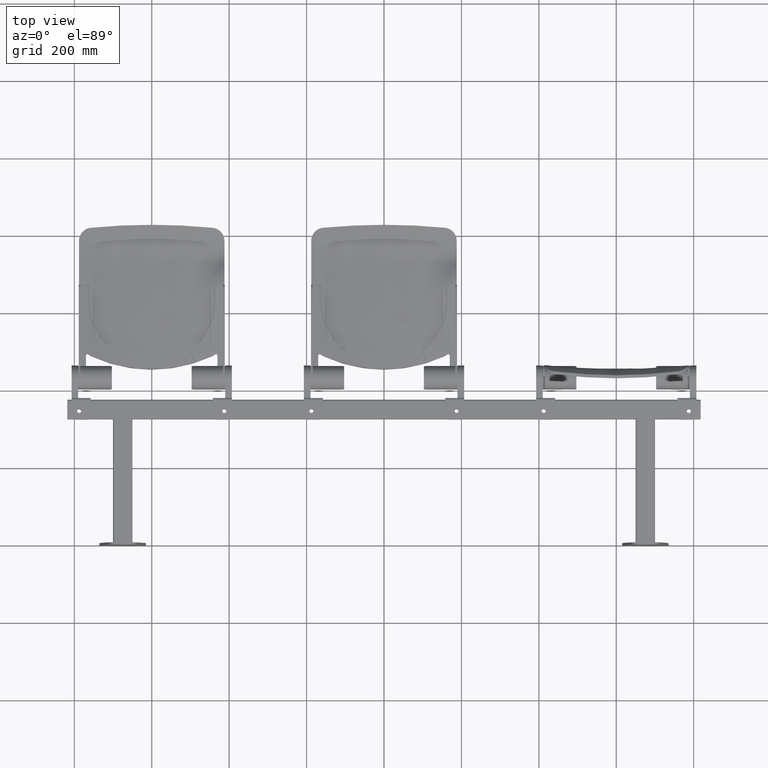
[diagram: clean part render]
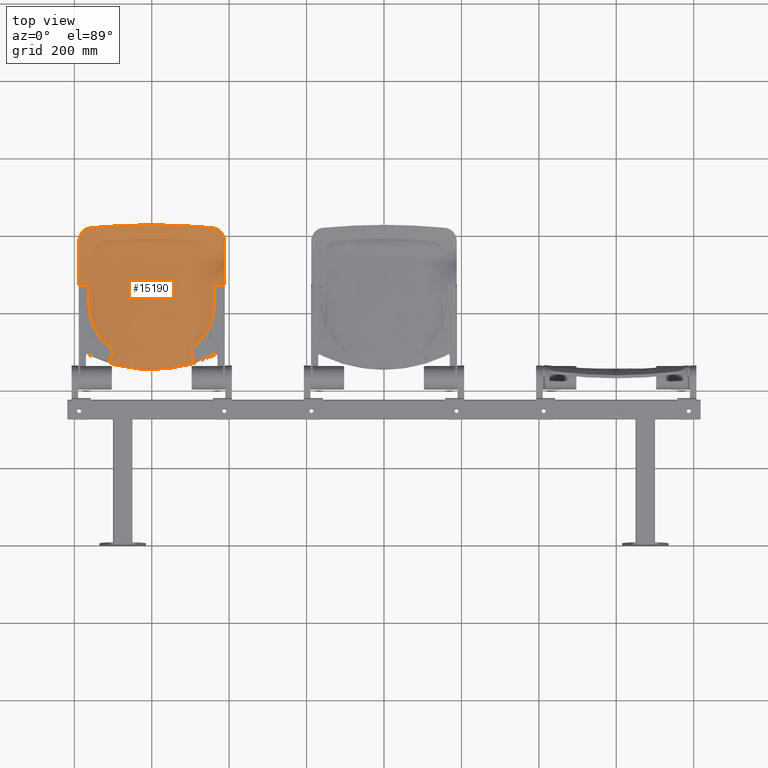
[diagram: same view with one face highlighted and labeled with its STEP entity id]
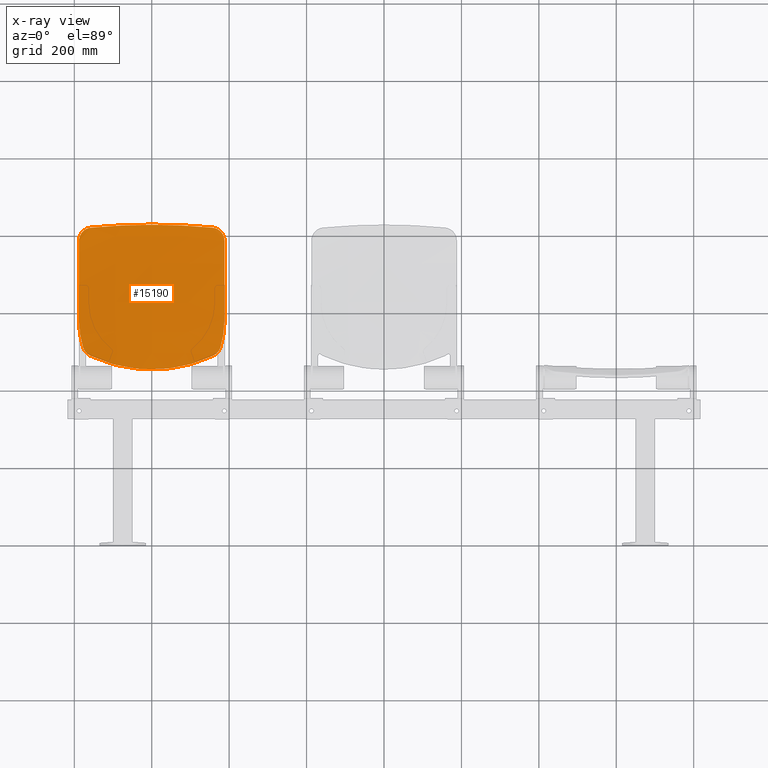
[diagram: x-ray of the same camera — body ghosted, the highlighted face saturated]
A machine part, top view. The second image highlights one B-rep face of the part: STEP entity #15190.
The next image is the same camera in x-ray: the body ghosted, the highlighted face saturated — about 0% of this face is hidden behind the body in this view.
In plain terms, the highlighted face is a freeform B-spline surface patch.
Its self-contained STEP definition (entity closure, byte-faithful):
#1044 = CARTESIAN_POINT ( 'NONE',  ( 15.71117517316924000, 9.625011423935854200, 334.6698681689800900 ) ) ;
#1045 = CARTESIAN_POINT ( 'NONE',  ( 15.66697783122571200, 13.24863454604015300, 371.0557791000745200 ) ) ;
#1046 = CARTESIAN_POINT ( 'NONE',  ( 15.67327466315645300, 0.1487426974481900200, 385.7407396810851900 ) ) ;
#1047 = CARTESIAN_POINT ( 'NONE',  ( 15.67730279820306400, -8.231365592305369500, 395.1348294431970800 ) ) ;
#1048 = CARTESIAN_POINT ( 'NONE',  ( 15.67773370908949100, -9.127830047869718300, 396.1397648536871500 ) ) ;
#1049 = CARTESIAN_POINT ( 'NONE',  ( 15.67816461997591800, -10.02429450343406900, 397.1447002641771700 ) ) ;
#1050 = CARTESIAN_POINT ( 'NONE',  ( 15.67859553086234700, -10.92075895899847300, 398.1496356746671400 ) ) ;
#1051 = CARTESIAN_POINT ( 'NONE',  ( 43.98675412974078800, -0.3095828431571858700, 21.13482944319650200 ) ) ;
#1052 = CARTESIAN_POINT ( 'NONE',  ( 43.66749001822022800, -0.3004636408266985200, 35.66151018004659800 ) ) ;
#1053 = CARTESIAN_POINT ( 'NONE',  ( 43.12537105877566300, -0.2849789925371550800, 60.32820073833461500 ) ) ;
#1054 = CARTESIAN_POINT ( 'NONE',  ( 46.09469711595758700, -0.3697924248132760100, 93.32833654054934400 ) ) ;
#1055 = CARTESIAN_POINT ( 'NONE',  ( 46.98815794703578100, -0.1284078959558065900, 120.1362454913551000 ) ) ;
#1056 = CARTESIAN_POINT ( 'NONE',  ( 47.59151520274314600, 0.2497853569454203700, 153.4697470938718000 ) ) ;
#1057 = CARTESIAN_POINT ( 'NONE',  ( 47.31135019484753500, 0.9243187475368461700, 195.2365378222172300 ) ) ;
#1058 = CARTESIAN_POINT ( 'NONE',  ( 47.22864401855419900, 5.835383966847965500, 245.0373924539753100 ) ) ;
#1059 = CARTESIAN_POINT ( 'NONE',  ( 47.13401870486762800, 8.348532892753841100, 295.3056468002246800 ) ) ;
#1060 = CARTESIAN_POINT ( 'NONE',  ( 47.13352537934596900, 10.17842529737351300, 334.6698681689800900 ) ) ;
#1061 = CARTESIAN_POINT ( 'NONE',  ( 47.00093352157836800, 13.40626494649895100, 371.0557791000745200 ) ) ;
#1062 = CARTESIAN_POINT ( 'NONE',  ( 47.01982399342716000, 0.3627606972691490600, 385.7407396810851900 ) ) ;
#1063 = CARTESIAN_POINT ( 'NONE',  ( 47.03190838325015500, -7.981275982556996800, 395.1348294431970800 ) ) ;
#1064 = CARTESIAN_POINT ( 'NONE',  ( 47.03320111427091600, -8.873881667442413200, 396.1397648536871500 ) ) ;
#1065 = CARTESIAN_POINT ( 'NONE',  ( 47.03449384529167100, -9.766487352327830600, 397.1447002641771700 ) ) ;
#1067 = CARTESIAN_POINT ( 'NONE',  ( 47.03578657631243200, -10.65909303721324800, 398.1496356746671400 ) ) ;
#1069 = CARTESIAN_POINT ( 'NONE',  ( 87.79981516145629400, 3.833143421285770900, 21.13482944319633500 ) ) ;
#1071 = CARTESIAN_POINT ( 'NONE',  ( 87.16018659354762100, 3.840705851009932600, 35.66151018004537600 ) ) ;
#1073 = CARTESIAN_POINT ( 'NONE',  ( 86.07408025978472200, 3.853547057976195700, 60.32820073833178000 ) ) ;
#1075 = CARTESIAN_POINT ( 'NONE',  ( 92.02296616670219000, 3.783212439003262000, 93.32833654055045300 ) ) ;
#1077 = CARTESIAN_POINT ( 'NONE',  ( 93.81680311281608900, 3.975835018141086400, 120.1362454913543200 ) ) ;
#1079 = CARTESIAN_POINT ( 'NONE',  ( 95.03105943927376100, 4.280449049409499600, 153.4697470938752400 ) ) ;
#1081 = CARTESIAN_POINT ( 'NONE',  ( 94.48172396632753600, 4.808991923138832700, 195.2365378222172300 ) ) ;
#1083 = CARTESIAN_POINT ( 'NONE',  ( 94.37788691049817700, 8.802468032886153500, 245.0373924539750900 ) ) ;
#1085 = CARTESIAN_POINT ( 'NONE',  ( 94.21596740861210200, 10.63252582080099300, 295.3056468002251300 ) ) ;
#1087 = CARTESIAN_POINT ( 'NONE',  ( 94.21711623271187400, 12.66811057353890700, 334.6698681689798600 ) ) ;
#1089 = CARTESIAN_POINT ( 'NONE',  ( 94.00147219792728500, 14.11568736029668300, 371.0557791000745200 ) ) ;
#1091 = CARTESIAN_POINT ( 'NONE',  ( 94.03219518225699900, 1.325818636287058500, 385.7407396810851900 ) ) ;
#1093 = CARTESIAN_POINT ( 'NONE',  ( 94.05184892739040900, -6.855965317177699500, 395.1348294431970800 ) ) ;
#1095 = CARTESIAN_POINT ( 'NONE',  ( 94.05395139233735300, -7.731213970748944700, 396.1397648536871500 ) ) ;
#1097 = CARTESIAN_POINT ( 'NONE',  ( 94.05605385728429700, -8.606462624320139200, 397.1447002641771700 ) ) ;
#1099 = CARTESIAN_POINT ( 'NONE',  ( 94.05815632223124100, -9.481711277891387000, 398.1496356746671400 ) ) ;
#1101 = CARTESIAN_POINT ( 'NONE',  ( 131.2661867296945100, 10.71943709515083800, 21.13482944319677900 ) ) ;
#1103 = CARTESIAN_POINT ( 'NONE',  ( 130.3040063659524300, 10.72417068897847000, 35.66151018004659800 ) ) ;
#1105 = CARTESIAN_POINT ( 'NONE',  ( 128.6701984972711400, 10.73220845729528400, 60.32820073833439500 ) ) ;
#1107 = CARTESIAN_POINT ( 'NONE',  ( 137.6189876742346300, 10.68818351684836700, 93.32833654054989800 ) ) ;
#1109 = CARTESIAN_POINT ( 'NONE',  ( 140.3269722737870200, 10.80070431953667600, 120.1362454913547700 ) ) ;
#1111 = CARTESIAN_POINT ( 'NONE',  ( 142.1671555287224500, 10.98385104751687500, 153.4697470938730000 ) ) ;
#1113 = CARTESIAN_POINT ( 'NONE',  ( 141.3705573537313300, 11.27073963855369100, 195.2365378222172300 ) ) ;
#1115 = CARTESIAN_POINT ( 'NONE',  ( 141.3684417409835100, 13.74248087914566000, 245.0373924539753100 ) ) ;
#1117 = CARTESIAN_POINT ( 'NONE',  ( 141.1938418451068700, 14.43613573770947900, 295.3056468002246800 ) ) ;
#1119 = CARTESIAN_POINT ( 'NONE',  ( 141.2008759528551400, 16.81524984813777100, 334.6698681689800900 ) ) ;
#1121 = CARTESIAN_POINT ( 'NONE',  ( 141.0012136615033900, 15.29835334563557600, 371.0557791000745200 ) ) ;
#1123 = CARTESIAN_POINT ( 'NONE',  ( 141.0296597136034200, 2.930835587663940700, 385.7407396810851900 ) ) ;
#1125 = CARTESIAN_POINT ( 'NONE',  ( 141.0478568865091200, -4.980766987772059700, 395.1348294431970800 ) ) ;
#1127 = CARTESIAN_POINT ( 'NONE',  ( 141.0498035342298500, -5.827112911977077500, 396.1397648536871500 ) ) ;
#1129 = CARTESIAN_POINT ( 'NONE',  ( 141.0517501819506100, -6.673458836182096100, 397.1447002641771700 ) ) ;
#1131 = CARTESIAN_POINT ( 'NONE',  ( 141.0536968296713400, -7.519804760387165400, 398.1496356746671400 ) ) ;
#1133 = CARTESIAN_POINT ( 'NONE',  ( 159.8982012710473000, 17.12129929382978600, 21.13482944319650200 ) ) ;
#1135 = CARTESIAN_POINT ( 'NONE',  ( 158.7188205400906000, 17.12306794913216000, 35.66151018004604400 ) ) ;
#1137 = CARTESIAN_POINT ( 'NONE',  ( 156.7162006665004700, 17.12607117291327400, 60.32820073833333700 ) ) ;
#1139 = CARTESIAN_POINT ( 'NONE',  ( 167.6850687897885500, 17.10962173783377300, 93.32833654055011200 ) ) ;
#1141 = CARTESIAN_POINT ( 'NONE',  ( 171.0161615940575900, 17.14900139034326900, 120.1362454913546600 ) ) ;
#1143 = CARTESIAN_POINT ( 'NONE',  ( 173.2885674622192200, 17.22039483304534000, 153.4697470938737900 ) ) ;
#1145 = CARTESIAN_POINT ( 'NONE',  ( 172.3489042226739800, 17.28404710114302000, 195.2365378222172300 ) ) ;
#1147 = CARTESIAN_POINT ( 'NONE',  ( 172.5369744330267600, 18.34602996869645600, 245.0373924539753100 ) ) ;
#1149 = CARTESIAN_POINT ( 'NONE',  ( 172.4084565484817500, 17.98193769882090700, 295.3056468002249100 ) ) ;
#1151 = CARTESIAN_POINT ( 'NONE',  ( 172.4236124940049400, 20.68266382560603100, 334.6698681689800900 ) ) ;
#1153 = CARTESIAN_POINT ( 'NONE',  ( 172.3335652849546000, 16.40258553566494000, 371.0557791000745200 ) ) ;
#1155 = CARTESIAN_POINT ( 'NONE',  ( 172.3463943854464400, 4.428740576666204900, 385.7407396810851900 ) ) ;
#1157 = CARTESIAN_POINT ( 'NONE',  ( 172.3546012662836800, -3.231026279494123800, 395.1348294431970800 ) ) ;
#1159 = CARTESIAN_POINT ( 'NONE',  ( 172.3554791996834900, -4.050432006369234700, 396.1397648536871500 ) ) ;
#1161 = CARTESIAN_POINT ( 'NONE',  ( 172.3563571330833200, -4.869837733244345700, 397.1447002641771700 ) ) ;
#1163 = CARTESIAN_POINT ( 'NONE',  ( 172.3572350664831300, -5.689243460119456600, 398.1496356746671400 ) ) ;
#1165 = CARTESIAN_POINT ( 'NONE',  ( 174.0995598828850500, 20.76863440769501100, 21.13482944319644500 ) ) ;
#1167 = CARTESIAN_POINT ( 'NONE',  ( 172.8108673481427200, 20.76856993135190500, 35.66151018004604400 ) ) ;
#1169 = CARTESIAN_POINT ( 'NONE',  ( 170.6226331220935300, 20.76846044880510800, 60.32820073833333700 ) ) ;
#1171 = CARTESIAN_POINT ( 'NONE',  ( 182.6081591647214900, 20.76906011309166500, 93.32833654055001200 ) ) ;
#1173 = CARTESIAN_POINT ( 'NONE',  ( 186.2553191836767900, 20.76733872985166200, 120.1362454913546600 ) ) ;
#1175 = CARTESIAN_POINT ( 'NONE',  ( 188.7487724972562300, 20.77556549868948800, 153.4697470938737900 ) ) ;
#1177 = CARTESIAN_POINT ( 'NONE',  ( 187.7447726677981700, 20.71264253244277500, 195.2365378222172300 ) ) ;
#1179 = CARTESIAN_POINT ( 'NONE',  ( 188.0684949501051600, 20.97356508450083700, 245.0373924539753100 ) ) ;
#1181 = CARTESIAN_POINT ( 'NONE',  ( 187.9811588983315300, 20.00629052857329200, 295.3056468002249100 ) ) ;
#1183 = CARTESIAN_POINT ( 'NONE',  ( 188.0017536320811500, 22.89121749987356600, 334.6698681689800900 ) ) ;
#1185 = CARTESIAN_POINT ( 'NONE',  ( 187.9994654584057200, 17.03375183225870500, 371.0557791000745200 ) ) ;
#1187 = CARTESIAN_POINT ( 'NONE',  ( 187.9997914564060600, 5.284638560062563600, 385.7407396810851900 ) ) ;
#1189 = CARTESIAN_POINT ( 'NONE',  ( 188.0000000000014800, -2.231365592305136300, 395.1348294431970800 ) ) ;
#1191 = CARTESIAN_POINT ( 'NONE',  ( 188.0000223090116000, -3.035392263262385500, 396.1397648536871500 ) ) ;
#1193 = CARTESIAN_POINT ( 'NONE',  ( 188.0000446180217500, -3.839418934219633900, 397.1447002641771700 ) ) ;
#1195 = CARTESIAN_POINT ( 'NONE',  ( 188.0000669270319000, -4.643445605176878200, 398.1496356746671400 ) ) ;
#1197 = CARTESIAN_POINT ( 'NONE',  ( 175.2470296587215400, 21.06333908489534000, 21.13482944319644500 ) ) ;
#1199 = CARTESIAN_POINT ( 'NONE',  ( 173.9495047302333100, 21.06312649151526600, 35.66151018004604400 ) ) ;
#1201 = CARTESIAN_POINT ( 'NONE',  ( 171.7462728645054400, 21.06276550229714700, 60.32820073833333700 ) ) ;
#1203 = CARTESIAN_POINT ( 'NONE',  ( 183.8139448670160600, 21.06474273381249400, 93.32833654055001200 ) ) ;
#1205 = CARTESIAN_POINT ( 'NONE',  ( 187.4866431169180300, 21.05970038688394300, 120.1362454913546600 ) ) ;
#1207 = CARTESIAN_POINT ( 'NONE',  ( 189.9979570640872200, 21.06282328847354500, 153.4697470938737900 ) ) ;
#1209 = CARTESIAN_POINT ( 'NONE',  ( 188.9887588381642200, 20.98967304329175900, 195.2365378222172300 ) ) ;
#1211 = CARTESIAN_POINT ( 'NONE',  ( 189.3234418078851000, 21.18586992185785100, 245.0373924539753100 ) ) ;
#1213 = CARTESIAN_POINT ( 'NONE',  ( 189.2394332481993900, 20.16985823721730100, 295.3056468002249100 ) ) ;
#1215 = CARTESIAN_POINT ( 'NONE',  ( 189.2604674360377100, 23.06966863675437200, 334.6698681689800900 ) ) ;
#1217 = CARTESIAN_POINT ( 'NONE',  ( 189.2652701924205900, 17.08475006902350700, 371.0557791000745200 ) ) ;
#1219 = CARTESIAN_POINT ( 'NONE',  ( 189.2645859397395900, 5.353795117120977700, 385.7407396810851900 ) ) ;
#1221 = CARTESIAN_POINT ( 'NONE',  ( 189.2641482176858600, -2.150593008780290000, 395.1348294431970800 ) ) ;
#1223 = CARTESIAN_POINT ( 'NONE',  ( 189.2641013922453200, -2.953377052019371600, 396.1397648536871500 ) ) ;
#1225 = CARTESIAN_POINT ( 'NONE',  ( 189.2640545668047900, -3.756161095258452300, 397.1447002641771700 ) ) ;
#1227 = CARTESIAN_POINT ( 'NONE',  ( 189.2640077413642200, -4.558945138497529500, 398.1496356746671400 ) ) ;
#1229 = CARTESIAN_POINT ( 'NONE',  ( 176.3944994345580400, 21.35804376209561500, 21.13482944319644500 ) ) ;
#1231 = CARTESIAN_POINT ( 'NONE',  ( 175.0881421123239400, 21.35768305167857400, 35.66151018004604400 ) ) ;
#1233 = CARTESIAN_POINT ( 'NONE',  ( 172.8699126069173500, 21.35707055578923900, 60.32820073833333700 ) ) ;
#1235 = CARTESIAN_POINT ( 'NONE',  ( 185.0197305693106100, 21.36042535453332300, 93.32833654055001200 ) ) ;
#1237 = CARTESIAN_POINT ( 'NONE',  ( 188.7179670501592700, 21.35206204391622400, 120.1362454913546600 ) ) ;
#1239 = CARTESIAN_POINT ( 'NONE',  ( 191.2471416309181800, 21.35008107825760200, 153.4697470938737900 ) ) ;
#1241 = CARTESIAN_POINT ( 'NONE',  ( 190.2327450085302300, 21.26670355414080000, 195.2365378222172300 ) ) ;
#1243 = CARTESIAN_POINT ( 'NONE',  ( 190.5783886656650500, 21.39817475921486400, 245.0373924539753100 ) ) ;
#1245 = CARTESIAN_POINT ( 'NONE',  ( 190.4977075980672500, 20.33342594586130800, 295.3056468002249100 ) ) ;
#1247 = CARTESIAN_POINT ( 'NONE',  ( 190.5191812399942800, 23.24811977363518200, 334.6698681689800900 ) ) ;
#1249 = CARTESIAN_POINT ( 'NONE',  ( 190.5310749264354500, 17.13574830578830400, 371.0557791000745200 ) ) ;
#1251 = CARTESIAN_POINT ( 'NONE',  ( 190.5293804230730900, 5.422951674179391700, 385.7407396810851900 ) ) ;
#1253 = CARTESIAN_POINT ( 'NONE',  ( 190.5282964353702700, -2.069820425255388200, 395.1348294431970800 ) ) ;
#1255 = CARTESIAN_POINT ( 'NONE',  ( 190.5281804754790200, -2.871361840776356800, 396.1397648536871500 ) ) ;
#1257 = CARTESIAN_POINT ( 'NONE',  ( 190.5280645155878300, -3.672903256297270800, 397.1447002641771700 ) ) ;
#1259 = CARTESIAN_POINT ( 'NONE',  ( 190.5279485556965800, -4.474444671818179800, 398.1496356746671400 ) ) ;
#1261 = CARTESIAN_POINT ( 'NONE',  ( 177.5419692103945400, 21.65274843929594800, 21.13482944319644500 ) ) ;
#1263 = CARTESIAN_POINT ( 'NONE',  ( 176.2267794944145300, 21.65223961184193500, 35.66151018004604400 ) ) ;
#1265 = CARTESIAN_POINT ( 'NONE',  ( 173.9935523493292900, 21.65137560928127800, 60.32820073833333700 ) ) ;
#1267 = CARTESIAN_POINT ( 'NONE',  ( 186.2255162716051900, 21.65610797525414800, 93.32833654055001200 ) ) ;
#1269 = CARTESIAN_POINT ( 'NONE',  ( 189.9492909834005200, 21.64442370094850400, 120.1362454913546600 ) ) ;
#1271 = CARTESIAN_POINT ( 'NONE',  ( 192.4963261977491700, 21.63733886804166000, 153.4697470938737900 ) ) ;
#1273 = CARTESIAN_POINT ( 'NONE',  ( 191.4767311788962700, 21.54373406498984200, 195.2365378222172300 ) ) ;
#1275 = CARTESIAN_POINT ( 'NONE',  ( 191.8333355234449900, 21.61047959657182100, 245.0373924539753100 ) ) ;
#1277 = CARTESIAN_POINT ( 'NONE',  ( 191.7559819479351100, 20.49699365450531700, 295.3056468002249100 ) ) ;
#1279 = CARTESIAN_POINT ( 'NONE',  ( 191.7778950439508500, 23.42657091051599100, 334.6698681689800900 ) ) ;
#1281 = CARTESIAN_POINT ( 'NONE',  ( 191.7968796604503200, 17.18674654255304500, 371.0557791000745200 ) ) ;
#1283 = CARTESIAN_POINT ( 'NONE',  ( 191.7941749064066200, 5.492108231237805800, 385.7407396810851900 ) ) ;
#1285 = CARTESIAN_POINT ( 'NONE',  ( 191.7924446530546400, -1.989047841730541900, 395.1348294431970800 ) ) ;
#1287 = CARTESIAN_POINT ( 'NONE',  ( 191.7922595587127100, -2.789346629533287400, 396.1397648536871500 ) ) ;
#1289 = CARTESIAN_POINT ( 'NONE',  ( 191.7920744643708400, -3.589645417336033700, 397.1447002641771700 ) ) ;
#1291 = CARTESIAN_POINT ( 'NONE',  ( 191.7918893700289100, -4.389944205138831100, 398.1496356746671400 ) ) ;
#2506 = CARTESIAN_POINT ( 'NONE',  ( -177.5078859497257600, 21.64399483502256400, 21.13482944319644500 ) ) ;
#2514 = CARTESIAN_POINT ( 'NONE',  ( -176.1929585820747900, 21.64349040708452800, 35.66151018004604400 ) ) ;
#2515 = CARTESIAN_POINT ( 'NONE',  ( -173.9601769114353300, 21.64263387501903700, 60.32820073833333700 ) ) ;
#2516 = CARTESIAN_POINT ( 'NONE',  ( -186.1897008547052200, 21.64732532315334600, 93.32833654055001200 ) ) ;
#2517 = CARTESIAN_POINT ( 'NONE',  ( -189.9127170051849300, 21.63573969133376800, 120.1362454913546600 ) ) ;
#2518 = CARTESIAN_POINT ( 'NONE',  ( -192.4592217056646200, 21.62880645844390800, 153.4697470938737900 ) ) ;
#2519 = CARTESIAN_POINT ( 'NONE',  ( -191.4397810946273600, 21.53550543595457600, 195.2365378222172300 ) ) ;
#2520 = CARTESIAN_POINT ( 'NONE',  ( -191.7960598742048400, 21.60417351229394700, 245.0373924539753100 ) ) ;
#2521 = CARTESIAN_POINT ( 'NONE',  ( -191.7186074622944100, 20.49213520771388300, 295.3056468002249100 ) ) ;
#2522 = CARTESIAN_POINT ( 'NONE',  ( -191.7405075052198200, 23.42127038169773800, 334.6698681689800900 ) ) ;
#2523 = CARTESIAN_POINT ( 'NONE',  ( -191.7592815000314800, 17.18523174344123600, 371.0557791000745200 ) ) ;
#2524 = CARTESIAN_POINT ( 'NONE',  ( -191.7566067534347400, 5.490054076077669300, 385.7407396810851900 ) ) ;
#2525 = CARTESIAN_POINT ( 'NONE',  ( -191.7548956960926600, -1.991447027379801900, 395.1348294431970800 ) ) ;
#2526 = CARTESIAN_POINT ( 'NONE',  ( -191.7547126552493100, -2.791782724916760800, 396.1397648536871500 ) ) ;
#2527 = CARTESIAN_POINT ( 'NONE',  ( -191.7545296144059800, -3.592118422453720600, 397.1447002641771700 ) ) ;
#2528 = CARTESIAN_POINT ( 'NONE',  ( -191.7543465735626300, -4.392454119990675900, 398.1496356746671400 ) ) ;
#2529 = CARTESIAN_POINT ( 'NONE',  ( -176.3717772607787400, 21.35220802591332400, 21.13482944319644500 ) ) ;
#2530 = CARTESIAN_POINT ( 'NONE',  ( -175.0655948374306100, 21.35185024850694900, 35.66151018004604400 ) ) ;
#2531 = CARTESIAN_POINT ( 'NONE',  ( -172.8476623149879000, 21.35124273294771100, 60.32820073833333700 ) ) ;
#2532 = CARTESIAN_POINT ( 'NONE',  ( -184.9958536247105500, 21.35457025313271400, 93.32833654055001200 ) ) ;
#2533 = CARTESIAN_POINT ( 'NONE',  ( -188.6935843980153900, 21.34627270417306700, 120.1362454913546600 ) ) ;
#2534 = CARTESIAN_POINT ( 'NONE',  ( -191.2224053028616600, 21.34439280519236000, 153.4697470938737900 ) ) ;
#2535 = CARTESIAN_POINT ( 'NONE',  ( -190.2081116190174700, 21.26121780145058400, 195.2365378222172300 ) ) ;
#2536 = CARTESIAN_POINT ( 'NONE',  ( -190.5535382328385500, 21.39397070302957700, 245.0373924539753100 ) ) ;
#2537 = CARTESIAN_POINT ( 'NONE',  ( -190.4727912743064500, 20.33018698133366800, 295.3056468002249100 ) ) ;
#2538 = CARTESIAN_POINT ( 'NONE',  ( -190.4942562141737300, 23.24458608775638200, 334.6698681689800900 ) ) ;
#2539 = CARTESIAN_POINT ( 'NONE',  ( -190.5060094861553400, 17.13473843971376100, 371.0557791000745200 ) ) ;
#2540 = CARTESIAN_POINT ( 'NONE',  ( -190.5043349877579100, 5.421582237405967700, 385.7407396810851900 ) ) ;
#2541 = CARTESIAN_POINT ( 'NONE',  ( -190.5032637973952500, -2.071419882354931900, 395.1348294431970800 ) ) ;
#2542 = CARTESIAN_POINT ( 'NONE',  ( -190.5031492065030800, -2.872985904365302100, 396.1397648536871500 ) ) ;
#2543 = CARTESIAN_POINT ( 'NONE',  ( -190.5030346156109100, -3.674551926375673200, 397.1447002641771700 ) ) ;
#2544 = CARTESIAN_POINT ( 'NONE',  ( -190.5029200247187500, -4.476117948386095300, 398.1496356746671400 ) ) ;
#2545 = CARTESIAN_POINT ( 'NONE',  ( -175.2356685718317000, 21.06042121680414100, 21.13482944319644500 ) ) ;
#2546 = CARTESIAN_POINT ( 'NONE',  ( -173.9382310927864500, 21.06021008992937400, 35.66151018004604400 ) ) ;
#2547 = CARTESIAN_POINT ( 'NONE',  ( -171.7351477185404700, 21.05985159087638100, 60.32820073833333700 ) ) ;
#2548 = CARTESIAN_POINT ( 'NONE',  ( -183.8020063947159000, 21.06181518311207800, 93.32833654055001200 ) ) ;
#2549 = CARTESIAN_POINT ( 'NONE',  ( -187.4744517908458500, 21.05680571701242000, 120.1362454913546600 ) ) ;
#2550 = CARTESIAN_POINT ( 'NONE',  ( -189.9855889000587000, 21.05997915194081200, 153.4697470938737900 ) ) ;
#2551 = CARTESIAN_POINT ( 'NONE',  ( -188.9764421434075000, 20.98693016694659600, 195.2365378222172300 ) ) ;
#2552 = CARTESIAN_POINT ( 'NONE',  ( -189.3110165914722500, 21.18376789376526400, 245.0373924539753100 ) ) ;
#2553 = CARTESIAN_POINT ( 'NONE',  ( -189.2269750863184800, 20.16823875495350600, 295.3056468002249100 ) ) ;
#2554 = CARTESIAN_POINT ( 'NONE',  ( -189.2480049231277000, 23.06790179381497600, 334.6698681689800900 ) ) ;
#2555 = CARTESIAN_POINT ( 'NONE',  ( -189.2527374722792500, 17.08424513598623300, 371.0557791000745200 ) ) ;
#2556 = CARTESIAN_POINT ( 'NONE',  ( -189.2520632220811500, 5.353110398734265200, 385.7407396810851900 ) ) ;
#2557 = CARTESIAN_POINT ( 'NONE',  ( -189.2516318986978100, -2.151392737330006400, 395.1348294431970800 ) ) ;
#2558 = CARTESIAN_POINT ( 'NONE',  ( -189.2515857577568300, -2.954189083813844300, 396.1397648536871500 ) ) ;
#2559 = CARTESIAN_POINT ( 'NONE',  ( -189.2515396168158500, -3.756985430297681300, 397.1447002641771700 ) ) ;
#2560 = CARTESIAN_POINT ( 'NONE',  ( -189.2514934758748700, -4.559781776781458800, 398.1496356746671400 ) ) ;
#2561 = CARTESIAN_POINT ( 'NONE',  ( -174.0995598828846800, 20.76863440769490100, 21.13482944319644500 ) ) ;
#2562 = CARTESIAN_POINT ( 'NONE',  ( -172.8108673481422700, 20.76856993135179500, 35.66151018004604400 ) ) ;
#2563 = CARTESIAN_POINT ( 'NONE',  ( -170.6226331220930500, 20.76846044880499400, 60.32820073833333700 ) ) ;
#2564 = CARTESIAN_POINT ( 'NONE',  ( -182.6081591647212900, 20.76906011309150200, 93.32833654055001200 ) ) ;
#2565 = CARTESIAN_POINT ( 'NONE',  ( -186.2553191836763100, 20.76733872985171600, 120.1362454913546600 ) ) ;
#2566 = CARTESIAN_POINT ( 'NONE',  ( -188.7487724972557400, 20.77556549868926800, 153.4697470938737900 ) ) ;
#2567 = CARTESIAN_POINT ( 'NONE',  ( -187.7447726677975800, 20.71264253244266100, 195.2365378222172300 ) ) ;
#2568 = CARTESIAN_POINT ( 'NONE',  ( -188.0684949501059600, 20.97356508450089100, 245.0373924539753100 ) ) ;
#2569 = CARTESIAN_POINT ( 'NONE',  ( -187.9811588983305100, 20.00629052857329200, 295.3056468002249100 ) ) ;
#2570 = CARTESIAN_POINT ( 'NONE',  ( -188.0017536320815700, 22.89121749987356600, 334.6698681689800900 ) ) ;
#2571 = CARTESIAN_POINT ( 'NONE',  ( -187.9994654584031900, 17.03375183225870500, 371.0557791000745200 ) ) ;
#2572 = CARTESIAN_POINT ( 'NONE',  ( -187.9997914564043800, 5.284638560062563600, 385.7407396810851900 ) ) ;
#2573 = CARTESIAN_POINT ( 'NONE',  ( -188.0000000000004000, -2.231365592305136300, 395.1348294431970800 ) ) ;
#2574 = CARTESIAN_POINT ( 'NONE',  ( -188.0000223090105700, -3.035392263262385500, 396.1397648536871500 ) ) ;
#2575 = CARTESIAN_POINT ( 'NONE',  ( -188.0000446180207800, -3.839418934219633900, 397.1447002641771700 ) ) ;
#2576 = CARTESIAN_POINT ( 'NONE',  ( -188.0000669270309900, -4.643445605176878200, 398.1496356746671400 ) ) ;
#2577 = CARTESIAN_POINT ( 'NONE',  ( -159.8982012710469000, 17.12129929382967600, 21.13482944319644500 ) ) ;
#2578 = CARTESIAN_POINT ( 'NONE',  ( -158.7188205400902300, 17.12306794913210300, 35.66151018004604400 ) ) ;
#2579 = CARTESIAN_POINT ( 'NONE',  ( -156.7162006665000700, 17.12607117291321800, 60.32820073833333700 ) ) ;
#2580 = CARTESIAN_POINT ( 'NONE',  ( -167.6850687897883500, 17.10962173783360600, 93.32833654055001200 ) ) ;
#2581 = CARTESIAN_POINT ( 'NONE',  ( -171.0161615940570200, 17.14900139034332600, 120.1362454913546600 ) ) ;
#2582 = CARTESIAN_POINT ( 'NONE',  ( -173.2885674622187100, 17.22039483304512000, 153.4697470938737900 ) ) ;
#2583 = CARTESIAN_POINT ( 'NONE',  ( -172.3489042226735300, 17.28404710114296700, 195.2365378222172300 ) ) ;
#2584 = CARTESIAN_POINT ( 'NONE',  ( -172.5369744330273800, 18.34602996869639900, 245.0373924539753100 ) ) ;
#2585 = CARTESIAN_POINT ( 'NONE',  ( -172.4084565484807300, 17.98193769882090700, 295.3056468002249100 ) ) ;
#2586 = CARTESIAN_POINT ( 'NONE',  ( -172.4236124940054300, 20.68266382560603100, 334.6698681689800900 ) ) ;
#2587 = CARTESIAN_POINT ( 'NONE',  ( -172.3335652849520700, 16.40258553566499700, 371.0557791000745200 ) ) ;
#2588 = CARTESIAN_POINT ( 'NONE',  ( -172.3463943854448000, 4.428740576666260000, 385.7407396810851900 ) ) ;
#2589 = CARTESIAN_POINT ( 'NONE',  ( -172.3546012662826300, -3.231026279494123800, 395.1348294431970800 ) ) ;
#2590 = CARTESIAN_POINT ( 'NONE',  ( -172.3554791996824900, -4.050432006369234700, 396.1397648536871500 ) ) ;
#2591 = CARTESIAN_POINT ( 'NONE',  ( -172.3563571330823500, -4.869837733244345700, 397.1447002641771700 ) ) ;
#2592 = CARTESIAN_POINT ( 'NONE',  ( -172.3572350664822500, -5.689243460119456600, 398.1496356746671400 ) ) ;
#2593 = CARTESIAN_POINT ( 'NONE',  ( -131.2661867296943700, 10.71943709515072600, 21.13482944319650200 ) ) ;
#2594 = CARTESIAN_POINT ( 'NONE',  ( -130.3040063659523200, 10.72417068897835800, 35.66151018004598700 ) ) ;
#2595 = CARTESIAN_POINT ( 'NONE',  ( -128.6701984972711200, 10.73220845729511900, 60.32820073833305900 ) ) ;
#2596 = CARTESIAN_POINT ( 'NONE',  ( -137.6189876742343200, 10.68818351684825500, 93.32833654055066600 ) ) ;
#2597 = CARTESIAN_POINT ( 'NONE',  ( -140.3269722737867400, 10.80070431953673100, 120.1362454913554200 ) ) ;
#2598 = CARTESIAN_POINT ( 'NONE',  ( -142.1671555287220800, 10.98385104751676300, 153.4697470938729100 ) ) ;
#2599 = CARTESIAN_POINT ( 'NONE',  ( -141.3705573537303600, 11.27073963855358100, 195.2365378222172300 ) ) ;
#2600 = CARTESIAN_POINT ( 'NONE',  ( -141.3684417409841700, 13.74248087914555000, 245.0373924539748900 ) ) ;
#2601 = CARTESIAN_POINT ( 'NONE',  ( -141.1938418451059400, 14.43613573770953500, 295.3056468002246800 ) ) ;
#2602 = CARTESIAN_POINT ( 'NONE',  ( -141.2008759528551100, 16.81524984813777100, 334.6698681689800900 ) ) ;
#2603 = CARTESIAN_POINT ( 'NONE',  ( -141.0012136615009100, 15.29835334563557600, 371.0557791000747400 ) ) ;
#2604 = CARTESIAN_POINT ( 'NONE',  ( -141.0296597136018300, 2.930835587663996200, 385.7407396810851900 ) ) ;
#2605 = CARTESIAN_POINT ( 'NONE',  ( -141.0478568865080100, -4.980766987771948700, 395.1348294431970800 ) ) ;
#2606 = CARTESIAN_POINT ( 'NONE',  ( -141.0498035342287700, -5.827112911976966500, 396.1397648536871500 ) ) ;
#2607 = CARTESIAN_POINT ( 'NONE',  ( -141.0517501819495300, -6.673458836182040200, 397.1447002641771700 ) ) ;
#2608 = CARTESIAN_POINT ( 'NONE',  ( -141.0536968296703200, -7.519804760387054400, 398.1496356746671400 ) ) ;
#2609 = CARTESIAN_POINT ( 'NONE',  ( -87.79981516145579700, 3.833143421285770900, 21.13482944319616800 ) ) ;
#2610 = CARTESIAN_POINT ( 'NONE',  ( -87.16018659354703900, 3.840705851009932600, 35.66151018004581600 ) ) ;
#2611 = CARTESIAN_POINT ( 'NONE',  ( -86.07408025978405400, 3.853547057976195700, 60.32820073833305900 ) ) ;
#2612 = CARTESIAN_POINT ( 'NONE',  ( -92.02296616670196300, 3.783212439003151000, 93.32833654054944400 ) ) ;
#2613 = CARTESIAN_POINT ( 'NONE',  ( -93.81680311281550600, 3.975835018141141900, 120.1362454913538800 ) ) ;
#2614 = CARTESIAN_POINT ( 'NONE',  ( -95.03105943927278100, 4.280449049409332600, 153.4697470938742200 ) ) ;
#2615 = CARTESIAN_POINT ( 'NONE',  ( -94.48172396632792000, 4.808991923138832700, 195.2365378222170000 ) ) ;
#2616 = CARTESIAN_POINT ( 'NONE',  ( -94.37788691049731000, 8.802468032886041600, 245.0373924539757700 ) ) ;
#2617 = CARTESIAN_POINT ( 'NONE',  ( -94.21596740861113500, 10.63252582080105000, 295.3056468002249100 ) ) ;
#2618 = CARTESIAN_POINT ( 'NONE',  ( -94.21711623271281200, 12.66811057353885200, 334.6698681689798600 ) ) ;
#2619 = CARTESIAN_POINT ( 'NONE',  ( -94.00147219792437200, 14.11568736029668300, 371.0557791000745200 ) ) ;
#2620 = CARTESIAN_POINT ( 'NONE',  ( -94.03219518225522200, 1.325818636287003000, 385.7407396810851900 ) ) ;
#2621 = CARTESIAN_POINT ( 'NONE',  ( -94.05184892738941500, -6.855965317177754600, 395.1348294431970800 ) ) ;
#2622 = CARTESIAN_POINT ( 'NONE',  ( -94.05395139233644400, -7.731213970748999700, 396.1397648536871500 ) ) ;
#2623 = CARTESIAN_POINT ( 'NONE',  ( -94.05605385728347300, -8.606462624320251100, 397.1447002641771700 ) ) ;
#2624 = CARTESIAN_POINT ( 'NONE',  ( -94.05815632223050200, -9.481711277891498900, 398.1496356746671400 ) ) ;
#2625 = CARTESIAN_POINT ( 'NONE',  ( -43.98675412974044000, -0.3095828431572413800, 21.13482944319699900 ) ) ;
#2626 = CARTESIAN_POINT ( 'NONE',  ( -43.66749001821980200, -0.3004636408267540300, 35.66151018004648400 ) ) ;
#2627 = CARTESIAN_POINT ( 'NONE',  ( -43.12537105877513000, -0.2849789925372106000, 60.32820073833345000 ) ) ;
#2628 = CARTESIAN_POINT ( 'NONE',  ( -46.09469711595767200, -0.3697924248132760100, 93.32833654055011200 ) ) ;
#2629 = CARTESIAN_POINT ( 'NONE',  ( -46.98815794703518400, -0.1284078959558065900, 120.1362454913553300 ) ) ;
#2630 = CARTESIAN_POINT ( 'NONE',  ( -47.59151520274323800, 0.2497853569454758800, 153.4697470938732200 ) ) ;
#2631 = CARTESIAN_POINT ( 'NONE',  ( -47.31135019484687400, 0.9243187475367351500, 195.2365378222174600 ) ) ;
#2632 = CARTESIAN_POINT ( 'NONE',  ( -47.22864401855365200, 5.835383966847910400, 245.0373924539746600 ) ) ;
#2633 = CARTESIAN_POINT ( 'NONE',  ( -47.13401870486706700, 8.348532892753786100, 295.3056468002249100 ) ) ;
#2634 = CARTESIAN_POINT ( 'NONE',  ( -47.13352537934614600, 10.17842529737351300, 334.6698681689800900 ) ) ;
#2635 = CARTESIAN_POINT ( 'NONE',  ( -47.00093352157590900, 13.40626494649895100, 371.0557791000747400 ) ) ;
#2636 = CARTESIAN_POINT ( 'NONE',  ( -47.01982399342549000, 0.3627606972691490600, 385.7407396810851900 ) ) ;
#2637 = CARTESIAN_POINT ( 'NONE',  ( -47.03190838324900400, -7.981275982556996800, 395.1348294431970800 ) ) ;
#2638 = CARTESIAN_POINT ( 'NONE',  ( -47.03320111426982200, -8.873881667442358200, 396.1397648536871500 ) ) ;
#2639 = CARTESIAN_POINT ( 'NONE',  ( -47.03449384529063300, -9.766487352327775500, 397.1447002641771700 ) ) ;
#2640 = CARTESIAN_POINT ( 'NONE',  ( -47.03578657631144500, -10.65909303721319300, 398.1496356746671400 ) ) ;
#2641 = CARTESIAN_POINT ( 'NONE',  ( -14.66225220949522000, -1.231365592305023500, 21.13482944319650200 ) ) ;
#2642 = CARTESIAN_POINT ( 'NONE',  ( -14.55583085501892200, -1.221915565461141100, 35.66151018004604400 ) ) ;
#2643 = CARTESIAN_POINT ( 'NONE',  ( -14.37512456242438000, -1.205869168341978400, 60.32820073833333700 ) ) ;
#2644 = CARTESIAN_POINT ( 'NONE',  ( -15.36489976572564100, -1.293759444562116100, 93.32833654055011200 ) ) ;
#2645 = CARTESIAN_POINT ( 'NONE',  ( -15.66271997199650900, -1.041463531936238400, 120.1362454913546600 ) ) ;
#2646 = CARTESIAN_POINT ( 'NONE',  ( -15.86383899043085300, -0.6468441808678011600, 153.4697470938737900 ) ) ;
#2647 = CARTESIAN_POINT ( 'NONE',  ( -15.77045055697225500, 0.06023888537592947400, 195.2365378222172300 ) ) ;
#2648 = CARTESIAN_POINT ( 'NONE',  ( -15.74288147546312700, 5.175701628657440000, 245.0373924539753100 ) ) ;
#2649 = CARTESIAN_POINT ( 'NONE',  ( -15.71133964592019800, 7.840782732895297300, 295.3056468002249100 ) ) ;
#2650 = CARTESIAN_POINT ( 'NONE',  ( -15.71117517316967000, 9.625011423935854200, 334.6698681689800900 ) ) ;
#2651 = CARTESIAN_POINT ( 'NONE',  ( -15.66697783122310200, 13.24863454604015300, 371.0557791000745200 ) ) ;
#2652 = CARTESIAN_POINT ( 'NONE',  ( -15.67327466315477500, 0.1487426974481900200, 385.7407396810851900 ) ) ;
#2653 = CARTESIAN_POINT ( 'NONE',  ( -15.67730279820198000, -8.231365592305369500, 395.1348294431970800 ) ) ;
#2654 = CARTESIAN_POINT ( 'NONE',  ( -15.67773370908847100, -9.127830047869773400, 396.1397648536871500 ) ) ;
#2655 = CARTESIAN_POINT ( 'NONE',  ( -15.67816461997496100, -10.02429450343412400, 397.1447002641771700 ) ) ;
#2656 = CARTESIAN_POINT ( 'NONE',  ( -15.67859553086145200, -10.92075895899847300, 398.1496356746671400 ) ) ;
#2657 = CARTESIAN_POINT ( 'NONE',  ( 14.66225220949562000, -1.231365592305023500, 21.13482944319650200 ) ) ;
#2658 = CARTESIAN_POINT ( 'NONE',  ( 14.55583085501935900, -1.221915565461085600, 35.66151018004604400 ) ) ;
#2659 = CARTESIAN_POINT ( 'NONE',  ( 14.37512456242488300, -1.205869168341978400, 60.32820073833333700 ) ) ;
#2660 = CARTESIAN_POINT ( 'NONE',  ( 15.36489976572581300, -1.293759444562060600, 93.32833654055011200 ) ) ;
#2661 = CARTESIAN_POINT ( 'NONE',  ( 15.66271997199705100, -1.041463531936238400, 120.1362454913546600 ) ) ;
#2662 = CARTESIAN_POINT ( 'NONE',  ( 15.86383899043136700, -0.6468441808678011600, 153.4697470938737900 ) ) ;
#2663 = CARTESIAN_POINT ( 'NONE',  ( 15.77045055697240100, 0.06023888537592947400, 195.2365378222172300 ) ) ;
#2664 = CARTESIAN_POINT ( 'NONE',  ( 15.74288147546393200, 5.175701628657440000, 245.0373924539753100 ) ) ;
#2665 = CARTESIAN_POINT ( 'NONE',  ( 15.71133964592087700, 7.840782732895297300, 295.3056468002249100 ) ) ;
#2691 = CARTESIAN_POINT ( 'NONE',  ( 188.0049101980313800, 20.58052148779119500, 287.5828289083611400 ) ) ;
#2692 = CARTESIAN_POINT ( 'NONE',  ( 187.9963098587145400, 20.90789511738904900, 300.7836204449415600 ) ) ;
#2693 = CARTESIAN_POINT ( 'NONE',  ( 187.9949214131723400, 21.20306497783924700, 307.3805816121471300 ) ) ;
#2694 = CARTESIAN_POINT ( 'NONE',  ( 187.9951887290693800, 21.60086299805787400, 320.5795366797672200 ) ) ;
#2695 = CARTESIAN_POINT ( 'NONE',  ( 187.9967558568738200, 21.70001808430384200, 327.1794941431476200 ) ) ;
#2696 = CARTESIAN_POINT ( 'NONE',  ( 187.9988021638893400, 21.37808750202004800, 337.0523711029184700 ) ) ;
#2697 = CARTESIAN_POINT ( 'NONE',  ( 187.9994215285154800, 21.19288606774246400, 340.3394205427013000 ) ) ;
#2698 = CARTESIAN_POINT ( 'NONE',  ( 188.0002994118128200, 20.62201462423689000, 346.9034574554690900 ) ) ;
#2699 = CARTESIAN_POINT ( 'NONE',  ( 188.0003629024022600, 20.24436696397968300, 350.1808476178542800 ) ) ;
#2700 = CARTESIAN_POINT ( 'NONE',  ( 188.0008113306029100, 19.68966097000120300, 353.4487847977398500 ) ) ;
#2701 = CARTESIAN_POINT ( 'NONE',  ( 157.5625037644820500, 2.046636857515995000, 387.6770732073326300 ) ) ;
#2702 = CARTESIAN_POINT ( 'NONE',  ( 144.5156282662131800, 0.4506598321736429200, 388.9149170927779600 ) ) ;
#2703 = CARTESIAN_POINT ( 'NONE',  ( 187.7972898963043600, 18.85739096823871800, 357.8361433858999000 ) ) ;
#2704 = CARTESIAN_POINT ( 'NONE',  ( 187.2174730194040300, 18.00956501215630800, 361.0031025979952800 ) ) ;
#2705 = CARTESIAN_POINT ( 'NONE',  ( 186.9779731111521000, 17.70139897728019900, 362.0450090595342100 ) ) ;
#2706 = CARTESIAN_POINT ( 'NONE',  ( 186.4080053036040900, 17.02907741658589600, 364.1003200955858000 ) ) ;
#2707 = CARTESIAN_POINT ( 'NONE',  ( 186.0760370870433700, 16.66299924834195100, 365.1165258324844600 ) ) ;
#2708 = CARTESIAN_POINT ( 'NONE',  ( 184.9680422570492900, 15.50002160056362000, 368.0605664574726500 ) ) ;
#2709 = CARTESIAN_POINT ( 'NONE',  ( 184.0764205241787600, 14.63659563935350900, 369.9060906947830200 ) ) ;
#2710 = CARTESIAN_POINT ( 'NONE',  ( 182.7742039139970700, 13.49032896525359800, 372.0884097828467800 ) ) ;
#2711 = CARTESIAN_POINT ( 'NONE',  ( 182.5042643782259700, 13.25769898595174600, 372.5185759236134700 ) ) ;
#2712 = CARTESIAN_POINT ( 'NONE',  ( 181.9450365597996600, 12.78668259519669800, 373.3666007206280100 ) ) ;
#2713 = CARTESIAN_POINT ( 'NONE',  ( 181.6551164315469300, 12.54779334324861200, 373.7853075195754400 ) ) ;
#2714 = CARTESIAN_POINT ( 'NONE',  ( 180.7608182666475900, 11.82819277763271500, 375.0161005529601000 ) ) ;
#2715 = CARTESIAN_POINT ( 'NONE',  ( 180.1327243867388000, 11.34506603623614600, 375.8023234204249500 ) ) ;
#2716 = CARTESIAN_POINT ( 'NONE',  ( 178.1512682785179000, 9.897883977909275500, 378.0648693749528200 ) ) ;
#2717 = CARTESIAN_POINT ( 'NONE',  ( 176.7019067833086900, 8.935940384569731200, 379.4461922016202500 ) ) ;
#2718 = CARTESIAN_POINT ( 'NONE',  ( 174.7079365393491100, 7.776682268013193100, 381.0187052177830700 ) ) ;
#2719 = CARTESIAN_POINT ( 'NONE',  ( 174.2999346565027800, 7.546994917835530000, 381.3254097921094400 ) ) ;
#2720 = CARTESIAN_POINT ( 'NONE',  ( 173.4645548477258200, 7.092995692675131600, 381.9229595959647600 ) ) ;
#2721 = CARTESIAN_POINT ( 'NONE',  ( 173.0376827018280300, 6.869007037232093700, 382.2133583585599000 ) ) ;
#2722 = CARTESIAN_POINT ( 'NONE',  ( 171.7394329051417100, 6.213009087676619300, 383.0523129788101600 ) ) ;
#2723 = CARTESIAN_POINT ( 'NONE',  ( 170.8466774147736700, 5.794866159952860600, 383.5714805229006300 ) ) ;
#2724 = CARTESIAN_POINT ( 'NONE',  ( 169.0037124329706400, 5.003956277876776300, 384.5293115234221700 ) ) ;
#2725 = CARTESIAN_POINT ( 'NONE',  ( 168.0535150792808300, 4.631168669470887300, 384.9679827744885800 ) ) ;
#2726 = CARTESIAN_POINT ( 'NONE',  ( 166.5817020257120200, 4.111706744754731500, 385.5632919447806400 ) ) ;
#2727 = CARTESIAN_POINT ( 'NONE',  ( 166.0833309617957500, 3.945179384586966300, 385.7512557301382100 ) ) ;
#2728 = CARTESIAN_POINT ( 'NONE',  ( 165.0702873487034600, 3.626446478738039900, 386.1055464396943600 ) ) ;
#2729 = CARTESIAN_POINT ( 'NONE',  ( 164.5544834329549800, 3.473932522301686800, 386.2722027273059100 ) ) ;
#2730 = CARTESIAN_POINT ( 'NONE',  ( 161.9457894265321400, 2.753767377590418300, 387.0451808490567500 ) ) ;
#2731 = CARTESIAN_POINT ( 'NONE',  ( 159.7911345380884400, 2.319257210280128800, 387.4656281698119100 ) ) ;
#2732 = CARTESIAN_POINT ( 'NONE',  ( 157.5625037644820500, 2.046636857515995000, 387.6770732073326300 ) ) ;
#2733 = CARTESIAN_POINT ( 'NONE',  ( -159.7943611095355400, 2.319651905510944800, 387.4653220429654500 ) ) ;
#2734 = CARTESIAN_POINT ( 'NONE',  ( -157.5625037645712000, 2.046636857521823700, 387.6770732073621800 ) ) ;
#2735 = CARTESIAN_POINT ( 'NONE',  ( 131.4506567813060900, -1.004206143683820600, 389.9993890497918300 ) ) ;
#2736 = CARTESIAN_POINT ( 'NONE',  ( 105.2788812478166600, -3.553377855088407900, 391.8610998422721000 ) ) ;
#2737 = CARTESIAN_POINT ( 'NONE',  ( 92.17204988503615900, -4.647305583790006800, 392.6383344618866400 ) ) ;
#2738 = CARTESIAN_POINT ( 'NONE',  ( 65.91242817795412600, -6.418182980166536200, 393.8839853164749900 ) ) ;
#2739 = CARTESIAN_POINT ( 'NONE',  ( 52.75964958396218000, -7.095301693092512400, 394.3523945081560700 ) ) ;
#2740 = CARTESIAN_POINT ( 'NONE',  ( 32.99426741446433200, -7.775257858895956000, 394.8215251450517400 ) ) ;
#2741 = CARTESIAN_POINT ( 'NONE',  ( 26.39978315308833600, -7.946130725482060300, 394.9389818200099300 ) ) ;
#2742 = CARTESIAN_POINT ( 'NONE',  ( 16.49889511264953900, -8.117215136770408200, 395.0565020817865000 ) ) ;
#2743 = CARTESIAN_POINT ( 'NONE',  ( 13.19666308892634500, -8.160042633322543500, 395.0858945184969600 ) ) ;
#2744 = CARTESIAN_POINT ( 'NONE',  ( 6.596448681924365500, -8.217108218839364000, 395.1250516012693800 ) ) ;
#2745 = CARTESIAN_POINT ( 'NONE',  ( 3.297597398077783300, -8.231365592305294900, 395.1348294431981000 ) ) ;
#2746 = CARTESIAN_POINT ( 'NONE',  ( 2.648100412316227500E-011, -8.231365592305369500, 395.1348294431980400 ) ) ;
#2747 = CARTESIAN_POINT ( 'NONE',  ( -188.0003610163783500, 19.69525980169285600, 353.4448146262167300 ) ) ;
#2748 = CARTESIAN_POINT ( 'NONE',  ( -188.0000043415346300, 20.76875424391301600, 295.1388003201665200 ) ) ;
#2749 = CARTESIAN_POINT ( 'NONE',  ( -188.0003610290081900, 20.10003408173287200, 351.0380257441916600 ) ) ;
#2750 = CARTESIAN_POINT ( 'NONE',  ( -161.9307923834678600, 2.752106804156063500, 387.0462392302500800 ) ) ;
#2751 = CARTESIAN_POINT ( 'NONE',  ( -165.0111693090034600, 3.598810338090265800, 386.1385163882367800 ) ) ;
#2752 = CARTESIAN_POINT ( 'NONE',  ( -166.0170798147177300, 3.914268316039979800, 385.7889951144273900 ) ) ;
#2753 = CARTESIAN_POINT ( 'NONE',  ( -167.9885987635173000, 4.606542931886280300, 384.9967292030623300 ) ) ;
#2754 = CARTESIAN_POINT ( 'NONE',  ( -168.9576184954432800, 4.985169228536807200, 384.5516995295242900 ) ) ;
#2755 = CARTESIAN_POINT ( 'NONE',  ( -171.7460636960530800, 6.178910016592526600, 383.1070905339484500 ) ) ;
#2756 = CARTESIAN_POINT ( 'NONE',  ( -173.4675323211896800, 7.057407107268715200, 381.9931816724555300 ) ) ;
#2757 = CARTESIAN_POINT ( 'NONE',  ( -175.8713323209279100, 8.452154543490831200, 380.1030223356806300 ) ) ;
#2758 = CARTESIAN_POINT ( 'NONE',  ( -176.6441318135372300, 8.931177471548627600, 379.4341603454224700 ) ) ;
#2759 = CARTESIAN_POINT ( 'NONE',  ( -178.1095046152374000, 9.892075875023888200, 378.0426126705303900 ) ) ;
#2760 = CARTESIAN_POINT ( 'NONE',  ( -178.8051564765964700, 10.37561036633549500, 377.3177934891274400 ) ) ;
#2761 = CARTESIAN_POINT ( 'NONE',  ( -180.7881624504383400, 11.82347418487263500, 375.0547530868735200 ) ) ;
#2762 = CARTESIAN_POINT ( 'NONE',  ( -181.9727431512814300, 12.78538886778296800, 373.4291333556562900 ) ) ;
#2763 = CARTESIAN_POINT ( 'NONE',  ( -183.5499553526426800, 14.17291251884154200, 370.7895514188621200 ) ) ;
#2764 = CARTESIAN_POINT ( 'NONE',  ( -184.0362415702002200, 14.62097501948592500, 369.8853522762277100 ) ) ;
#2765 = CARTESIAN_POINT ( 'NONE',  ( -184.9273622507408000, 15.47583632196635500, 368.0357136656626800 ) ) ;
#2766 = CARTESIAN_POINT ( 'NONE',  ( -185.3330806321035300, 15.88343083200705800, 367.0887904106342000 ) ) ;
#2767 = CARTESIAN_POINT ( 'NONE',  ( -186.4308913911261500, 17.03495826228458300, 364.1772621606903000 ) ) ;
#2768 = CARTESIAN_POINT ( 'NONE',  ( -187.0056615143966200, 17.70287782458310800, 362.1408064175195100 ) ) ;
#2769 = CARTESIAN_POINT ( 'NONE',  ( -187.4992421827730000, 18.42086768193877300, 359.4685738363272700 ) ) ;
#2770 = CARTESIAN_POINT ( 'NONE',  ( -187.5865181345623400, 18.55857935892640100, 358.9278404748816300 ) ) ;
#2771 = CARTESIAN_POINT ( 'NONE',  ( -187.7361014725854900, 18.82008964843570500, 357.8441073164609600 ) ) ;
#4019 = FACE_OUTER_BOUND ( 'NONE', #15997, .T. ) ;
#4286 = EDGE_CURVE ( 'NONE', #12797, #12796, #8194, .T. ) ;
#4289 = EDGE_CURVE ( 'NONE', #12834, #12793, #9889, .T. ) ;
#4290 = EDGE_CURVE ( 'NONE', #12793, #12802, #9906, .T. ) ;
#4291 = EDGE_CURVE ( 'NONE', #12802, #12797, #9918, .T. ) ;
#4292 = EDGE_CURVE ( 'NONE', #12796, #12788, #9860, .T. ) ;
#4293 = EDGE_CURVE ( 'NONE', #12788, #12795, #9853, .T. ) ;
#4294 = EDGE_CURVE ( 'NONE', #12795, #12792, #9920, .T. ) ;
#4295 = EDGE_CURVE ( 'NONE', #12792, #12804, #9845, .T. ) ;
#4296 = EDGE_CURVE ( 'NONE', #12804, #12789, #9844, .T. ) ;
#4297 = EDGE_CURVE ( 'NONE', #12789, #12803, #9861, .T. ) ;
#4298 = EDGE_CURVE ( 'NONE', #12803, #12942, #9885, .T. ) ;
#4299 = EDGE_CURVE ( 'NONE', #12942, #12933, #9919, .T. ) ;
#4300 = EDGE_CURVE ( 'NONE', #12933, #12934, #9893, .T. ) ;
#4301 = EDGE_CURVE ( 'NONE', #12934, #12935, #9851, .T. ) ;
#4302 = EDGE_CURVE ( 'NONE', #12935, #12936, #9868, .T. ) ;
#4303 = EDGE_CURVE ( 'NONE', #12936, #12937, #9922, .T. ) ;
#4304 = EDGE_CURVE ( 'NONE', #12937, #12834, #9915, .T. ) ;
#4505 = CARTESIAN_POINT ( 'NONE',  ( -187.7986671728976400, 18.94424713672969300, 357.2998119175206300 ) ) ;
#4506 = CARTESIAN_POINT ( 'NONE',  ( -187.9493329945763100, 19.29777525371119000, 355.6597895335309000 ) ) ;
#4507 = CARTESIAN_POINT ( 'NONE',  ( -188.0004825359032200, 19.50823275101340900, 354.5569397770018400 ) ) ;
#4508 = CARTESIAN_POINT ( 'NONE',  ( -188.0003610163783500, 19.69525980169285600, 353.4448146262167300 ) ) ;
#4509 = CARTESIAN_POINT ( 'NONE',  ( -188.0000024197411800, 20.76857764545582400, 245.1419670024642100 ) ) ;
#4510 = CARTESIAN_POINT ( 'NONE',  ( -187.9999999999998000, 20.54675829166112800, 286.8059957899040500 ) ) ;
#4511 = CARTESIAN_POINT ( 'NONE',  ( -188.0002597949878700, 20.41128037194348700, 348.6204556509501300 ) ) ;
#4512 = CARTESIAN_POINT ( 'NONE',  ( -187.9999572090671300, 20.91371395486159600, 343.7714759250343900 ) ) ;
#4513 = CARTESIAN_POINT ( 'NONE',  ( -187.9995504176876900, 21.10686941421676400, 341.3382427010866400 ) ) ;
#4514 = CARTESIAN_POINT ( 'NONE',  ( -187.9982616760709400, 21.53901445741883300, 334.0402310960345700 ) ) ;
#4515 = CARTESIAN_POINT ( 'NONE',  ( -187.9970786169041900, 21.62889871976726400, 329.1762628582104100 ) ) ;
#4516 = CARTESIAN_POINT ( 'NONE',  ( -187.9944582942702300, 21.54835676745498000, 314.5867836322047400 ) ) ;
#4517 = CARTESIAN_POINT ( 'NONE',  ( -187.9941656677847600, 21.02699610735854900, 304.8637032570419500 ) ) ;
#4518 = CARTESIAN_POINT ( 'NONE',  ( -188.0000043415346300, 20.76875424391301600, 295.1388003201665200 ) ) ;
#4519 = CARTESIAN_POINT ( 'NONE',  ( -188.0002704932509200, 20.76870075088539700, 195.1348687407526400 ) ) ;
#4520 = CARTESIAN_POINT ( 'NONE',  ( -187.9604046388981300, 20.88634824880935200, 228.4731107302308400 ) ) ;
#4521 = CARTESIAN_POINT ( 'NONE',  ( -188.0000000000000000, 20.51702257723141200, 278.4731902733588000 ) ) ;
#4522 = CARTESIAN_POINT ( 'NONE',  ( -187.9999999999999700, 20.59652503550536200, 261.8075787980238800 ) ) ;
#4523 = CARTESIAN_POINT ( 'NONE',  ( -188.0000000000001100, 20.70631535227798600, 253.4747728374771000 ) ) ;
#4524 = CARTESIAN_POINT ( 'NONE',  ( -188.0000024197411800, 20.76857764545582400, 245.1419670024642100 ) ) ;
#4525 = CARTESIAN_POINT ( 'NONE',  ( -188.0000000000001700, 20.73240032302049600, 154.5608413924775600 ) ) ;
#4526 = CARTESIAN_POINT ( 'NONE',  ( -188.0000000000000000, 20.71787559975000200, 181.6102276671918200 ) ) ;
#4527 = CARTESIAN_POINT ( 'NONE',  ( -187.8516178611183100, 20.79925682909749100, 211.8037675155353300 ) ) ;
#4528 = CARTESIAN_POINT ( 'NONE',  ( -188.0002704932509200, 20.76870075088539700, 195.1348687407526400 ) ) ;
#4529 = CARTESIAN_POINT ( 'NONE',  ( -187.8561337672505000, 20.76826293940671400, 145.3053330435444900 ) ) ;
#4530 = CARTESIAN_POINT ( 'NONE',  ( -187.9999985197239900, 20.74669016184527200, 151.7913124840393100 ) ) ;
#4531 = CARTESIAN_POINT ( 'NONE',  ( -188.0000000000000000, 20.66261550019772700, 168.0855903648986800 ) ) ;
#4532 = CARTESIAN_POINT ( 'NONE',  ( -188.0000000000001700, 20.73240032302049600, 154.5608413924775600 ) ) ;
#4533 = CARTESIAN_POINT ( 'NONE',  ( -177.8472204437869700, 20.76877148168528100, 80.02891621790414000 ) ) ;
#4534 = CARTESIAN_POINT ( 'NONE',  ( -187.6293279379183000, 20.77049117073975600, 139.7886924829899400 ) ) ;
#4535 = CARTESIAN_POINT ( 'NONE',  ( -187.9617645721786500, 20.75891041311545800, 148.7059495477198500 ) ) ;
#4536 = CARTESIAN_POINT ( 'NONE',  ( -187.8561337672505000, 20.76826293940671400, 145.3053330435444900 ) ) ;
#4537 = CARTESIAN_POINT ( 'NONE',  ( -158.6470066615885300, 17.20852178291561100, 56.92407457525688800 ) ) ;
#4538 = CARTESIAN_POINT ( 'NONE',  ( -177.1265441731308100, 20.76876038828309100, 77.50720330557550100 ) ) ;
#4539 = CARTESIAN_POINT ( 'NONE',  ( -187.2807706759927000, 20.77023973563528300, 134.2778366416799300 ) ) ;
#4540 = CARTESIAN_POINT ( 'NONE',  ( -186.5878168381007100, 20.76932943243692300, 126.0259285231781200 ) ) ;
#4541 = CARTESIAN_POINT ( 'NONE',  ( -186.3304030625571700, 20.76939086223431400, 123.2776461188556400 ) ) ;
#4542 = CARTESIAN_POINT ( 'NONE',  ( -185.7559592309685000, 20.76866451108937300, 117.7863905388604200 ) ) ;
#4543 = CARTESIAN_POINT ( 'NONE',  ( -185.4415962854419300, 20.76828679802934000, 115.0439994888422700 ) ) ;
#4544 = CARTESIAN_POINT ( 'NONE',  ( -184.7210702314651200, 20.76821681478832500, 109.5709197206755200 ) ) ;
#4545 = CARTESIAN_POINT ( 'NONE',  ( -184.3135303487629500, 20.76826736058515600, 106.8392029876796300 ) ) ;
#4546 = CARTESIAN_POINT ( 'NONE',  ( -183.3667875600375500, 20.76842436018411700, 101.4024990322088100 ) ) ;
#4547 = CARTESIAN_POINT ( 'NONE',  ( -182.8276236080093000, 20.76856539767488400, 98.69676049582594100 ) ) ;
#4548 = CARTESIAN_POINT ( 'NONE',  ( -181.8924959897398100, 20.76834923969929000, 94.66238199118087900 ) ) ;
#4549 = CARTESIAN_POINT ( 'NONE',  ( -181.5604925168917100, 20.76868104141195900, 93.32196488731492000 ) ) ;
#4550 = CARTESIAN_POINT ( 'NONE',  ( -180.8633813133173500, 20.76872984553858000, 90.65101702499924800 ) ) ;
#4551 = CARTESIAN_POINT ( 'NONE',  ( -180.4996515656308400, 20.76874722044870600, 89.31965642682985200 ) ) ;
#4552 = CARTESIAN_POINT ( 'NONE',  ( -179.3833899269847100, 20.76878236888227000, 85.33237113408149800 ) ) ;
#4553 = CARTESIAN_POINT ( 'NONE',  ( -178.6058152103351200, 20.76878321119306400, 82.68330872436452200 ) ) ;
#4554 = CARTESIAN_POINT ( 'NONE',  ( -177.8472204437869700, 20.76877148168528100, 80.02891621790414000 ) ) ;
#4555 = CARTESIAN_POINT ( 'NONE',  ( 158.6470066615812900, 17.20852178291561100, 56.92407457527210100 ) ) ;
#4556 = CARTESIAN_POINT ( 'NONE',  ( -152.5139461310511100, 15.82120719273344100, 54.00858194611816300 ) ) ;
#4557 = CARTESIAN_POINT ( 'NONE',  ( -176.1621753666692600, 20.69352493142541100, 75.10347017252270500 ) ) ;
#4558 = CARTESIAN_POINT ( 'NONE',  ( -174.3637518703433500, 20.45846816433891400, 71.66893401781945300 ) ) ;
#4559 = CARTESIAN_POINT ( 'NONE',  ( -173.7050525159534400, 20.35972995063615100, 70.55287153716511700 ) ) ;
#4560 = CARTESIAN_POINT ( 'NONE',  ( -172.6245779612536400, 20.17975700038456900, 68.92369873428717100 ) ) ;
#4561 = CARTESIAN_POINT ( 'NONE',  ( -172.2495767485418400, 20.11453582098267400, 68.38926289841263900 ) ) ;
#4562 = CARTESIAN_POINT ( 'NONE',  ( -171.4777064444740500, 19.97517598172506900, 67.34831255538851700 ) ) ;
#4563 = CARTESIAN_POINT ( 'NONE',  ( -171.0798147734442700, 19.90087011094470900, 66.84022426386104600 ) ) ;
#4564 = CARTESIAN_POINT ( 'NONE',  ( -169.0312357481753600, 19.50705668433019100, 64.36091615319901400 ) ) ;
#4565 = CARTESIAN_POINT ( 'NONE',  ( -167.2054159362721700, 19.12032383369884400, 62.57102823013967500 ) ) ;
#4566 = CARTESIAN_POINT ( 'NONE',  ( -164.6775148579710300, 18.56416181166783700, 60.58377722744607800 ) ) ;
#4567 = CARTESIAN_POINT ( 'NONE',  ( -164.1582948851175000, 18.44899629888699300, 60.19816840988200800 ) ) ;
#4568 = CARTESIAN_POINT ( 'NONE',  ( -163.1035093103151000, 18.21371801605526400, 59.45930442207008300 ) ) ;
#4569 = CARTESIAN_POINT ( 'NONE',  ( -162.5673519345284300, 18.09347914417146400, 59.10547704000590100 ) ) ;
#4570 = CARTESIAN_POINT ( 'NONE',  ( -160.9325802787209300, 17.72568321073669800, 58.09054806373787700 ) ) ;
#4571 = CARTESIAN_POINT ( 'NONE',  ( -159.8077426825509200, 17.47108321186140100, 57.47585877806137200 ) ) ;
#4572 = CARTESIAN_POINT ( 'NONE',  ( -158.6470066615885300, 17.20852178291561100, 56.92407457525688800 ) ) ;
#4573 = CARTESIAN_POINT ( 'NONE',  ( 177.8472204437872200, 20.76877148168539100, 80.02891621790480800 ) ) ;
#4574 = CARTESIAN_POINT ( 'NONE',  ( 160.9680188834951500, 17.73354075608154200, 58.02742265166029500 ) ) ;
#4575 = CARTESIAN_POINT ( 'NONE',  ( -146.3237514000865100, 14.46630350993418200, 51.27293858001855400 ) ) ;
#4576 = CARTESIAN_POINT ( 'NONE',  ( -133.8223658919739300, 11.88472520544387500, 46.15189197871374900 ) ) ;
#4577 = CARTESIAN_POINT ( 'NONE',  ( -127.5112275250268800, 10.65755652935141700, 43.76656248265194200 ) ) ;
#4578 = CARTESIAN_POINT ( 'NONE',  ( -114.7639314481753000, 8.363964109044303500, 39.34326463750348100 ) ) ;
#4579 = CARTESIAN_POINT ( 'NONE',  ( -108.3278203977966100, 7.297149032115518400, 37.30533699559144600 ) ) ;
#4580 = CARTESIAN_POINT ( 'NONE',  ( -95.32765896566128600, 5.340321209575727800, 33.57863069835323000 ) ) ;
#5724 = CARTESIAN_POINT ( 'NONE',  ( -188.0003610163783500, 19.69525980169285600, 353.4448146262167300 ) ) ;
#5725 = CARTESIAN_POINT ( 'NONE',  ( -188.0000000000001700, 20.73240032302049600, 154.5608413924775600 ) ) ;
#5728 = CARTESIAN_POINT ( 'NONE',  ( -188.0000024197411800, 20.76857764545582400, 245.1419670024642100 ) ) ;
#5729 = CARTESIAN_POINT ( 'NONE',  ( 188.0008113306029100, 19.68966097000120300, 353.4487847977398500 ) ) ;
#5731 = CARTESIAN_POINT ( 'NONE',  ( -188.0000043415346300, 20.76875424391301600, 295.1388003201665200 ) ) ;
#5732 = CARTESIAN_POINT ( 'NONE',  ( -157.5625037645712000, 2.046636857521823700, 387.6770732073621800 ) ) ;
#5733 = CARTESIAN_POINT ( 'NONE',  ( 2.648100412316227500E-011, -8.231365592305369500, 395.1348294431980400 ) ) ;
#5738 = CARTESIAN_POINT ( 'NONE',  ( 157.5625037644820500, 2.046636857515995000, 387.6770732073326300 ) ) ;
#5739 = CARTESIAN_POINT ( 'NONE',  ( -187.8561337672505000, 20.76826293940671400, 145.3053330435444900 ) ) ;
#5740 = CARTESIAN_POINT ( 'NONE',  ( -188.0002704932509200, 20.76870075088539700, 195.1348687407526400 ) ) ;
#5770 = CARTESIAN_POINT ( 'NONE',  ( 188.0002704937090800, 20.76870075447130800, 195.1348686472438800 ) ) ;
#5869 = CARTESIAN_POINT ( 'NONE',  ( -158.6470066615885300, 17.20852178291561100, 56.92407457525688800 ) ) ;
#5870 = CARTESIAN_POINT ( 'NONE',  ( 158.6470066615812900, 17.20852178291561100, 56.92407457527210100 ) ) ;
#5871 = CARTESIAN_POINT ( 'NONE',  ( 177.8472204437872200, 20.76877148168539100, 80.02891621790480800 ) ) ;
#5872 = CARTESIAN_POINT ( 'NONE',  ( 187.8561337348749600, 20.76826294022722400, 145.3053322055062900 ) ) ;
#5873 = CARTESIAN_POINT ( 'NONE',  ( 188.0000000000000300, 20.73240032302055300, 154.5608413924775600 ) ) ;
#5878 = CARTESIAN_POINT ( 'NONE',  ( -177.8472204437869700, 20.76877148168528100, 80.02891621790414000 ) ) ;
#7364 = CARTESIAN_POINT ( 'NONE',  ( -26.39382860236425900, -8.002075075240098200, 394.9780139128624800 ) ) ;
#7370 = CARTESIAN_POINT ( 'NONE',  ( -13.20698769630251400, -8.231365592305675000, 395.1348294431982100 ) ) ;
#7373 = CARTESIAN_POINT ( 'NONE',  ( 2.648100412316227500E-011, -8.231365592305369500, 395.1348294431980400 ) ) ;
#7374 = CARTESIAN_POINT ( 'NONE',  ( -52.72801451827248100, -7.096636475589828100, 394.3533174906716000 ) ) ;
#7375 = CARTESIAN_POINT ( 'NONE',  ( -65.87534721530467200, -6.420275734356474500, 393.8854406564926800 ) ) ;
#7376 = CARTESIAN_POINT ( 'NONE',  ( -92.13234105450263200, -4.650390133074344200, 392.6405208341699900 ) ) ;
#7377 = CARTESIAN_POINT ( 'NONE',  ( -105.2419921466284500, -3.556689801684516500, 391.8634837664969800 ) ) ;
#7378 = CARTESIAN_POINT ( 'NONE',  ( -131.4268789399799300, -1.006802601280001300, 390.0013200699652900 ) ) ;
#7379 = CARTESIAN_POINT ( 'NONE',  ( -144.5021368033164600, 0.4490094703678659800, 388.9161971176283100 ) ) ;
#7380 = CARTESIAN_POINT ( 'NONE',  ( -157.5625037645712000, 2.046636857521823700, 387.6770732073621800 ) ) ;
#7420 = CARTESIAN_POINT ( 'NONE',  ( 187.8825438228266200, 20.79291866307019300, 208.3413855723840400 ) ) ;
#7421 = CARTESIAN_POINT ( 'NONE',  ( 188.0008113306029100, 19.68966097000120300, 353.4487847977398500 ) ) ;
#7422 = CARTESIAN_POINT ( 'NONE',  ( 187.9267931108641400, 20.85286775834587700, 221.5485554308890500 ) ) ;
#7425 = CARTESIAN_POINT ( 'NONE',  ( 188.0001832733614400, 19.32086501596390300, 355.6701718077223400 ) ) ;
#7426 = CARTESIAN_POINT ( 'NONE',  ( 188.0002704937090800, 20.76870075447130800, 195.1348686472438800 ) ) ;
#7427 = CARTESIAN_POINT ( 'NONE',  ( 187.9801970909998400, 20.80915146410566400, 238.0570210516786200 ) ) ;
#7428 = CARTESIAN_POINT ( 'NONE',  ( 187.9907501112511700, 20.79448257012088100, 241.3587098980716200 ) ) ;
#7429 = CARTESIAN_POINT ( 'NONE',  ( 188.0069260207246200, 20.74937156544976000, 247.9620843153297500 ) ) ;
#7430 = CARTESIAN_POINT ( 'NONE',  ( 188.0122432531808000, 20.71849753752281800, 251.2637138128870300 ) ) ;
#7431 = CARTESIAN_POINT ( 'NONE',  ( 188.0221287570721200, 20.62325176249603200, 261.1685701993812400 ) ) ;
#7432 = CARTESIAN_POINT ( 'NONE',  ( 188.0205850428207000, 20.55625464400529600, 267.7717988123501400 ) ) ;
#7433 = CARTESIAN_POINT ( 'NONE',  ( 188.0120115419880700, 20.53496499773741500, 280.9787162647957600 ) ) ;
#8194 = B_SPLINE_CURVE_WITH_KNOTS ( 'NONE', 3,
 ( #7373, #7370, #7364, #7374, #7375, #7376, #7377, #7378, #7379, #7380 ),
 .UNSPECIFIED., .F., .F.,
 ( 4, 2, 2, 2, 4 ),
 ( 0.1580893056641835500, 0.1976613649319032800, 0.2372334241996230100, 0.2768054834673426800, 0.3163775427350623600 ),
 .UNSPECIFIED. ) ;
#9844 = B_SPLINE_CURVE_WITH_KNOTS ( 'NONE', 3,
 ( #4519, #4526, #4531, #4532 ),
 .UNSPECIFIED., .F., .F.,
 ( 4, 4 ),
 ( 8.326672684688674100E-017, 0.04057404377601675500 ),
 .UNSPECIFIED. ) ;
#9845 = B_SPLINE_CURVE_WITH_KNOTS ( 'NONE', 3,
 ( #4509, #4520, #4527, #4528 ),
 .UNSPECIFIED., .F., .F.,
 ( 4, 4 ),
 ( 5.551115123125782100E-017, 0.05000777098380256000 ),
 .UNSPECIFIED. ) ;
#9851 = B_SPLINE_CURVE_WITH_KNOTS ( 'NONE', 3,
 ( #4555, #4574, #16308, #16309, #16310, #16311, #16312, #16313, #16314, #16315, #16316, #16317, #16318, #16319, #16320, #16321, #16322, #16323 ),
 .UNSPECIFIED., .F., .F.,
 ( 4, 2, 2, 2, 2, 2, 2, 2, 4 ),
 ( 6.293006791785826000E-017, 0.007757486548251566600, 0.01163622982237732400, 0.01357560145944020400, 0.01551497309650308300, 0.02327245964475463000, 0.02521183128181751800, 0.02715120291888040500, 0.03102994619300621400 ),
 .UNSPECIFIED. ) ;
#9853 = B_SPLINE_CURVE_WITH_KNOTS ( 'NONE', 3,
 ( #2747, #2749, #4511, #4512, #4513, #4514, #4515, #4516, #4517, #4518 ),
 .UNSPECIFIED., .F., .F.,
 ( 4, 2, 2, 2, 4 ),
 ( 0.0000000000000000000, 0.007311925532181082600, 0.01462385106436216500, 0.02924770212872433000, 0.05849540425744866000 ),
 .UNSPECIFIED. ) ;
#9860 = B_SPLINE_CURVE_WITH_KNOTS ( 'NONE', 3,
 ( #2734, #2733, #2750, #2751, #2752, #2753, #2754, #2755, #2756, #2757, #2758, #2759, #2760, #2761, #2762, #2763, #2764, #2765, #2766, #2767, #2768, #2769, #2770, #2771, #4505, #4506, #4507, #4508 ),
 .UNSPECIFIED., .F., .F.,
 ( 4, 2, 2, 2, 2, 2, 2, 2, 2, 2, 2, 2, 2, 4 ),
 ( 8.532939732906424100E-017, 0.006638840641478942900, 0.009958260962218409100, 0.01327768128295787700, 0.01991652192443681100, 0.02323594224517632600, 0.02655536256591584100, 0.03319420320739493300, 0.03651362352813453800, 0.03983304384887415700, 0.04647188449035326300, 0.04813159465072307200, 0.04979130481109287500, 0.05311072513183250100 ),
 .UNSPECIFIED. ) ;
#9861 = B_SPLINE_CURVE_WITH_KNOTS ( 'NONE', 3,
 ( #4525, #4530, #4535, #4536 ),
 .UNSPECIFIED., .F., .F.,
 ( 4, 4 ),
 ( 0.0000000000000000000, 1.000000000000000000 ),
 .UNSPECIFIED. ) ;
#9868 = B_SPLINE_CURVE_WITH_KNOTS ( 'NONE', 3,
 ( #4573, #16307, #16326, #16327, #16328, #16329, #16330, #16331, #16332, #16333, #16334, #16335, #16336, #16337, #16338, #16339, #16340, #16341 ),
 .UNSPECIFIED., .F., .F.,
 ( 4, 2, 2, 2, 2, 2, 2, 2, 4 ),
 ( 1.387778780781445700E-017, 0.008282723838568250100, 0.01242408575785237600, 0.01656544767713650000, 0.02484817151570475200, 0.03313089535427300000, 0.04141361919284124900, 0.04969634303140950400, 0.06626179070854593100 ),
 .UNSPECIFIED. ) ;
#9885 = B_SPLINE_CURVE_WITH_KNOTS ( 'NONE', 3,
 ( #4529, #4534, #4539, #4540, #4541, #4542, #4543, #4544, #4545, #4546, #4547, #4548, #4549, #4550, #4551, #4552, #4553, #4554 ),
 .UNSPECIFIED., .F., .F.,
 ( 4, 2, 2, 2, 2, 2, 2, 2, 4 ),
 ( 5.551115123125782700E-017, 0.01656179564729701900, 0.02484269347094553900, 0.03312359129459405800, 0.04140448911824257100, 0.04968538694189109100, 0.05382583585371535800, 0.05796628476553961800, 0.06624718258918814400 ),
 .UNSPECIFIED. ) ;
#9889 = B_SPLINE_CURVE_WITH_KNOTS ( 'NONE', 3,
 ( #7426, #7420, #7422, #7427, #7428, #7429, #7430, #7431, #7432, #7433, #2691, #2692, #2693, #2694, #2695, #2696, #2697, #2698, #2699, #2700 ),
 .UNSPECIFIED., .F., .F.,
 ( 4, 2, 2, 2, 2, 2, 2, 2, 2, 4 ),
 ( 0.0000000000000000000, 0.03962095897604330000, 0.04952619872005413500, 0.05943143846406498400, 0.07924191795208650200, 0.09905239744010802000, 0.1188628769281295500, 0.1386733564161510800, 0.1485785961601618400, 0.1584838359041725900 ),
 .UNSPECIFIED. ) ;
#9893 = B_SPLINE_CURVE_WITH_KNOTS ( 'NONE', 3,
 ( #4537, #4556, #4575, #4576, #4577, #4578, #4579, #4580, #16278, #16279, #16280, #16281, #16282, #16283, #16284, #16285, #16286, #16287, #16288, #16289, #16290, #16291, #16292, #16293, #16294, #16295, #16296, #16297, #16298, #16299, #16300, #16301, #16302, #16303, #16304, #16305 ),
 .UNSPECIFIED., .F., .F.,
 ( 4, 2, 2, 2, 2, 2, 2, 2, 2, 2, 2, 2, 2, 2, 2, 2, 2, 4 ),
 ( 0.0000000000000000000, 0.02049676770613486100, 0.04099353541226972300, 0.06149030311840454600, 0.08198707082453936300, 0.1024838385306741800, 0.1127322223837416300, 0.1178564143102753400, 0.1229806062368090500, 0.1639741416490787800, 0.2049676770613484700, 0.2459612124736182100, 0.2664579801797530800, 0.2715821721062867700, 0.2767063640328205100, 0.2869547478858879300, 0.3074515155920227700, 0.3279482832981576200 ),
 .UNSPECIFIED. ) ;
#9906 = B_SPLINE_CURVE_WITH_KNOTS ( 'NONE', 3,
 ( #7421, #7425, #2703, #2704, #2705, #2706, #2707, #2708, #2709, #2710, #2711, #2712, #2713, #2714, #2715, #2716, #2717, #2718, #2719, #2720, #2721, #2722, #2723, #2724, #2725, #2726, #2727, #2728, #2729, #2730, #2731, #2732 ),
 .UNSPECIFIED., .F., .F.,
 ( 4, 2, 2, 2, 2, 2, 2, 2, 2, 2, 2, 2, 2, 2, 2, 4 ),
 ( 5.647850449853784200E-017, 0.006656240747395213300, 0.009984361121092719800, 0.01331248149479022900, 0.01996872224218527300, 0.02163278242903402300, 0.02329684261588277000, 0.02662496298958026700, 0.03328120373697526100, 0.03494526392382401500, 0.03660932411067276800, 0.03993744448437029600, 0.04326556485806782500, 0.04492962504491655000, 0.04659368523176527600, 0.05324992597915997200 ),
 .UNSPECIFIED. ) ;
#9915 = B_SPLINE_CURVE_WITH_KNOTS ( 'NONE', 3,
 ( #16324, #16342, #16347, #16348 ),
 .UNSPECIFIED., .F., .F.,
 ( 4, 4 ),
 ( 0.0000000000000000000, 0.04057404368252257000 ),
 .UNSPECIFIED. ) ;
#9918 = B_SPLINE_CURVE_WITH_KNOTS ( 'NONE', 3,
 ( #2701, #2702, #2735, #2736, #2737, #2738, #2739, #2740, #2741, #2742, #2743, #2744, #2745, #2746 ),
 .UNSPECIFIED., .F., .F.,
 ( 4, 2, 2, 2, 2, 2, 4 ),
 ( 0.0000000000000000000, 0.03952232641604588900, 0.07904465283209177700, 0.1185669792481376700, 0.1383281424561606000, 0.1482087240601720800, 0.1580893056641835500 ),
 .UNSPECIFIED. ) ;
#9919 = B_SPLINE_CURVE_WITH_KNOTS ( 'NONE', 3,
 ( #4533, #4538, #4557, #4558, #4559, #4560, #4561, #4562, #4563, #4564, #4565, #4566, #4567, #4568, #4569, #4570, #4571, #4572 ),
 .UNSPECIFIED., .F., .F.,
 ( 4, 2, 2, 2, 2, 2, 2, 2, 4 ),
 ( 2.775557561562891000E-017, 0.007759640628363765500, 0.01163946094254565200, 0.01357937109963661100, 0.01551928125672757300, 0.02327892188509132400, 0.02521883204218226100, 0.02715874219927319800, 0.03103856251345507600 ),
 .UNSPECIFIED. ) ;
#9920 = B_SPLINE_CURVE_WITH_KNOTS ( 'NONE', 3,
 ( #2748, #4510, #4521, #4522, #4523, #4524 ),
 .UNSPECIFIED., .F., .F.,
 ( 4, 2, 4 ),
 ( 1.665334536937734800E-016, 0.02499841683338543600, 0.04999683366677070600 ),
 .UNSPECIFIED. ) ;
#9922 = B_SPLINE_CURVE_WITH_KNOTS ( 'NONE', 3,
 ( #16306, #16325, #16343, #16344 ),
 .UNSPECIFIED., .F., .F.,
 ( 4, 4 ),
 ( 0.0000000000000000000, 1.000000000000000000 ),
 .UNSPECIFIED. ) ;
#12324 = ORIENTED_EDGE ( 'NONE', *, *, #4291, .T. ) ;
#12325 = ORIENTED_EDGE ( 'NONE', *, *, #4286, .T. ) ;
#12326 = ORIENTED_EDGE ( 'NONE', *, *, #4293, .T. ) ;
#12327 = ORIENTED_EDGE ( 'NONE', *, *, #4294, .T. ) ;
#12331 = ORIENTED_EDGE ( 'NONE', *, *, #4292, .T. ) ;
#12332 = ORIENTED_EDGE ( 'NONE', *, *, #4300, .T. ) ;
#12334 = ORIENTED_EDGE ( 'NONE', *, *, #4304, .T. ) ;
#12335 = ORIENTED_EDGE ( 'NONE', *, *, #4289, .T. ) ;
#12336 = ORIENTED_EDGE ( 'NONE', *, *, #4290, .T. ) ;
#12337 = ORIENTED_EDGE ( 'NONE', *, *, #4301, .T. ) ;
#12338 = ORIENTED_EDGE ( 'NONE', *, *, #4302, .T. ) ;
#12341 = ORIENTED_EDGE ( 'NONE', *, *, #4296, .T. ) ;
#12342 = ORIENTED_EDGE ( 'NONE', *, *, #4297, .T. ) ;
#12343 = ORIENTED_EDGE ( 'NONE', *, *, #4298, .T. ) ;
#12344 = ORIENTED_EDGE ( 'NONE', *, *, #4299, .T. ) ;
#12345 = ORIENTED_EDGE ( 'NONE', *, *, #4295, .T. ) ;
#12353 = ORIENTED_EDGE ( 'NONE', *, *, #4303, .T. ) ;
#12788 = VERTEX_POINT ( 'NONE', #5724 ) ;
#12789 = VERTEX_POINT ( 'NONE', #5725 ) ;
#12792 = VERTEX_POINT ( 'NONE', #5728 ) ;
#12793 = VERTEX_POINT ( 'NONE', #5729 ) ;
#12795 = VERTEX_POINT ( 'NONE', #5731 ) ;
#12796 = VERTEX_POINT ( 'NONE', #5732 ) ;
#12797 = VERTEX_POINT ( 'NONE', #5733 ) ;
#12802 = VERTEX_POINT ( 'NONE', #5738 ) ;
#12803 = VERTEX_POINT ( 'NONE', #5739 ) ;
#12804 = VERTEX_POINT ( 'NONE', #5740 ) ;
#12834 = VERTEX_POINT ( 'NONE', #5770 ) ;
#12933 = VERTEX_POINT ( 'NONE', #5869 ) ;
#12934 = VERTEX_POINT ( 'NONE', #5870 ) ;
#12935 = VERTEX_POINT ( 'NONE', #5871 ) ;
#12936 = VERTEX_POINT ( 'NONE', #5872 ) ;
#12937 = VERTEX_POINT ( 'NONE', #5873 ) ;
#12942 = VERTEX_POINT ( 'NONE', #5878 ) ;
#15190 = ADVANCED_FACE ( 'NONE', ( #4019 ), #16357, .T. ) ;
#15997 = EDGE_LOOP ( 'NONE', ( #12335, #12336, #12324, #12325, #12331, #12326, #12327, #12345, #12341, #12342, #12343, #12344, #12332, #12337, #12338, #12353, #12334 ) ) ;
#16278 = CARTESIAN_POINT ( 'NONE',  ( -88.76363803704036600, 4.450084348576412600, 31.88986596154720500 ) ) ;
#16279 = CARTESIAN_POINT ( 'NONE',  ( -75.50468742558540200, 2.855246151098161300, 28.86715746075177300 ) ) ;
#16280 = CARTESIAN_POINT ( 'NONE',  ( -68.80978165121897000, 2.150488928068222900, 27.53321160825833000 ) ) ;
#16281 = CARTESIAN_POINT ( 'NONE',  ( -58.66645037018921700, 1.237501805329758600, 25.80547783780982500 ) ) ;
#16282 = CARTESIAN_POINT ( 'NONE',  ( -55.26850312656743800, 0.9571936537960538100, 25.27512709527126200 ) ) ;
#16283 = CARTESIAN_POINT ( 'NONE',  ( -50.14588653438692500, 0.5734443313318586800, 24.54910644716743200 ) ) ;
#16284 = CARTESIAN_POINT ( 'NONE',  ( -48.43406436606687000, 0.4516473401142918600, 24.31868583339880300 ) ) ;
#16285 = CARTESIAN_POINT ( 'NONE',  ( -45.00177126421061800, 0.2204154373137373900, 23.88123639168481200 ) ) ;
#16286 = CARTESIAN_POINT ( 'NONE',  ( -43.28131495350283600, 0.1109931981291348700, 23.67423092865755100 ) ) ;
#16287 = CARTESIAN_POINT ( 'NONE',  ( -27.79879852014981300, -0.8153552541900861400, 21.92174943098836000 ) ) ;
#16288 = CARTESIAN_POINT ( 'NONE',  ( -13.97599359971100900, -1.229528219870969400, 21.13830415327201000 ) ) ;
#16289 = CARTESIAN_POINT ( 'NONE',  ( 13.79164523789719800, -1.233190806839174100, 21.13137772527573700 ) ) ;
#16290 = CARTESIAN_POINT ( 'NONE',  ( 27.52730618652287500, -0.8226915584801209900, 21.90786981962545400 ) ) ;
#16291 = CARTESIAN_POINT ( 'NONE',  ( 54.71003125570353400, 0.7861727647612647400, 24.95154757344035400 ) ) ;
#16292 = CARTESIAN_POINT ( 'NONE',  ( 68.15791944664441400, 1.985486190646049900, 27.21896412275002000 ) ) ;
#16293 = CARTESIAN_POINT ( 'NONE',  ( 88.11667955226798200, 4.365810519770730200, 31.73001662803182700 ) ) ;
#16294 = CARTESIAN_POINT ( 'NONE',  ( 94.73400708328307500, 5.256355367094117000, 33.41911244316225500 ) ) ;
#16295 = CARTESIAN_POINT ( 'NONE',  ( 102.9610215992037900, 6.488224780132000500, 35.76469118256586900 ) ) ;
#16296 = CARTESIAN_POINT ( 'NONE',  ( 104.6041919002381900, 6.740520118431065900, 36.24552658860660200 ) ) ;
#16297 = CARTESIAN_POINT ( 'NONE',  ( 107.8860628356463300, 7.256822143652810200, 37.23073575288720600 ) ) ;
#16298 = CARTESIAN_POINT ( 'NONE',  ( 109.5255197848544800, 7.520959466885134500, 37.73535959441884600 ) ) ;
#16299 = CARTESIAN_POINT ( 'NONE',  ( 114.4258576345850600, 8.328781750068960900, 39.28107087823936200 ) ) ;
#16300 = CARTESIAN_POINT ( 'NONE',  ( 117.6717565419127700, 8.888360746597522100, 40.35485797923724500 ) ) ;
#16301 = CARTESIAN_POINT ( 'NONE',  ( 127.3477859255645900, 10.62588164938702600, 43.70496435536387000 ) ) ;
#16302 = CARTESIAN_POINT ( 'NONE',  ( 133.7161802713735300, 11.86333866442435300, 46.10983611969705700 ) ) ;
#16303 = CARTESIAN_POINT ( 'NONE',  ( 146.2963923691725900, 14.46011834298788700, 51.26030465745976300 ) ) ;
#16304 = CARTESIAN_POINT ( 'NONE',  ( 152.5081498132995000, 15.81989605032691200, 54.00582653280557800 ) ) ;
#16305 = CARTESIAN_POINT ( 'NONE',  ( 158.6470066615812900, 17.20852178291561100, 56.92407457527210100 ) ) ;
#16306 = CARTESIAN_POINT ( 'NONE',  ( 187.8561337348749600, 20.76826294022722400, 145.3053322055062900 ) ) ;
#16307 = CARTESIAN_POINT ( 'NONE',  ( 178.6058873567194800, 20.76878321230879400, 82.68356117116334800 ) ) ;
#16308 = CARTESIAN_POINT ( 'NONE',  ( 163.1276418451970500, 18.22294464349656100, 59.37097625333789400 ) ) ;
#16309 = CARTESIAN_POINT ( 'NONE',  ( 166.1400320896924500, 18.88604060083806500, 61.73080094343958300 ) ) ;
#16310 = CARTESIAN_POINT ( 'NONE',  ( 167.1059881308573600, 19.09509690542424900, 62.57534211971182700 ) ) ;
#16311 = CARTESIAN_POINT ( 'NONE',  ( 168.4966244944377300, 19.38700751335102300, 63.93169029018180500 ) ) ;
#16312 = CARTESIAN_POINT ( 'NONE',  ( 168.9483958727412300, 19.48024757131236500, 64.39689155295224100 ) ) ;
#16313 = CARTESIAN_POINT ( 'NONE',  ( 169.8225287260735600, 19.65688857898604500, 65.34635787867596000 ) ) ;
#16314 = CARTESIAN_POINT ( 'NONE',  ( 170.2459107984023200, 19.74051133937869600, 65.83160995255818200 ) ) ;
#16315 = CARTESIAN_POINT ( 'NONE',  ( 172.2958274183403700, 20.13483389405554300, 68.30946892741727100 ) ) ;
#16316 = CARTESIAN_POINT ( 'NONE',  ( 173.7238859841596900, 20.37411746130427300, 70.45506174802406500 ) ) ;
#16317 = CARTESIAN_POINT ( 'NONE',  ( 175.2416462503794300, 20.57338092186168400, 73.34356764168481400 ) ) ;
#16318 = CARTESIAN_POINT ( 'NONE',  ( 175.5315022983829200, 20.60820212117079100, 73.93161133157833800 ) ) ;
#16319 = CARTESIAN_POINT ( 'NONE',  ( 176.0785453663098400, 20.66732404252907800, 75.11745352252820900 ) ) ;
#16320 = CARTESIAN_POINT ( 'NONE',  ( 176.3364802591625300, 20.69172764876079600, 75.71662438389006400 ) ) ;
#16321 = CARTESIAN_POINT ( 'NONE',  ( 177.0638284816673700, 20.74994188980132700, 77.53275346466681100 ) ) ;
#16322 = CARTESIAN_POINT ( 'NONE',  ( 177.4869414852557600, 20.76876593689940600, 78.76826681285037100 ) ) ;
#16323 = CARTESIAN_POINT ( 'NONE',  ( 177.8472204437872200, 20.76877148168539100, 80.02891621790480800 ) ) ;
#16324 = CARTESIAN_POINT ( 'NONE',  ( 188.0000000000000300, 20.73240032302055300, 154.5608413924775600 ) ) ;
#16325 = CARTESIAN_POINT ( 'NONE',  ( 187.9617630678007500, 20.75891075819067000, 148.7058796015629100 ) ) ;
#16326 = CARTESIAN_POINT ( 'NONE',  ( 179.3835348694088600, 20.76878237019639400, 85.33285694113560300 ) ) ;
#16327 = CARTESIAN_POINT ( 'NONE',  ( 180.4999939035477000, 20.76874720672882900, 89.32089522993227600 ) ) ;
#16328 = CARTESIAN_POINT ( 'NONE',  ( 180.8638222991141600, 20.76872982299152800, 90.65264253498716600 ) ) ;
#16329 = CARTESIAN_POINT ( 'NONE',  ( 181.5611266435071200, 20.76868098867874600, 93.32445871744641900 ) ) ;
#16330 = CARTESIAN_POINT ( 'NONE',  ( 181.8930975678264300, 20.76834915134697100, 94.66486949970143900 ) ) ;
#16331 = CARTESIAN_POINT ( 'NONE',  ( 182.8280993581111300, 20.76856596307823500, 98.69902899841886800 ) ) ;
#16332 = CARTESIAN_POINT ( 'NONE',  ( 183.3672469910154300, 20.76842427263173400, 101.4048792084983600 ) ) ;
#16333 = CARTESIAN_POINT ( 'NONE',  ( 184.3140105771131500, 20.76826729232401900, 106.8422190946227800 ) ) ;
#16334 = CARTESIAN_POINT ( 'NONE',  ( 184.7214759461995500, 20.76821679897432200, 109.5737794669941800 ) ) ;
#16335 = CARTESIAN_POINT ( 'NONE',  ( 185.4418528627601900, 20.76828687822127500, 115.0461706839612600 ) ) ;
#16336 = CARTESIAN_POINT ( 'NONE',  ( 185.7561739485199700, 20.76866498995534700, 117.7883198406672100 ) ) ;
#16337 = CARTESIAN_POINT ( 'NONE',  ( 186.3305525823670900, 20.76939084379398500, 123.2791987333566400 ) ) ;
#16338 = CARTESIAN_POINT ( 'NONE',  ( 186.5879427975892800, 20.76932961438904000, 126.0273241447684400 ) ) ;
#16339 = CARTESIAN_POINT ( 'NONE',  ( 187.2808378865751700, 20.77023979094632700, 134.2788457638490100 ) ) ;
#16340 = CARTESIAN_POINT ( 'NONE',  ( 187.6293436118015400, 20.77049101113711100, 139.7890743229369300 ) ) ;
#16341 = CARTESIAN_POINT ( 'NONE',  ( 187.8561337348749600, 20.76826294022722400, 145.3053322055062900 ) ) ;
#16342 = CARTESIAN_POINT ( 'NONE',  ( 188.0000000000000300, 20.66261550035862600, 168.0855903337334500 ) ) ;
#16343 = CARTESIAN_POINT ( 'NONE',  ( 187.9999985196202200, 20.74669052133819500, 151.7912428073765300 ) ) ;
#16344 = CARTESIAN_POINT ( 'NONE',  ( 188.0000000000000300, 20.73240032302055300, 154.5608413924775600 ) ) ;
#16347 = CARTESIAN_POINT ( 'NONE',  ( 188.0000000000000000, 20.71787559950655900, 181.6102276048622700 ) ) ;
#16348 = CARTESIAN_POINT ( 'NONE',  ( 188.0002704937090800, 20.76870075447130800, 195.1348686472438800 ) ) ;
#16357 = B_SPLINE_SURFACE_WITH_KNOTS ( 'NONE', 3, 3, ( 
 ( #2506, #2514, #2515, #2516, #2517, #2518, #2519, #2520, #2521, #2522, #2523, #2524, #2525, #2526, #2527, #2528 ),
 ( #2529, #2530, #2531, #2532, #2533, #2534, #2535, #2536, #2537, #2538, #2539, #2540, #2541, #2542, #2543, #2544 ),
 ( #2545, #2546, #2547, #2548, #2549, #2550, #2551, #2552, #2553, #2554, #2555, #2556, #2557, #2558, #2559, #2560 ),
 ( #2561, #2562, #2563, #2564, #2565, #2566, #2567, #2568, #2569, #2570, #2571, #2572, #2573, #2574, #2575, #2576 ),
 ( #2577, #2578, #2579, #2580, #2581, #2582, #2583, #2584, #2585, #2586, #2587, #2588, #2589, #2590, #2591, #2592 ),
 ( #2593, #2594, #2595, #2596, #2597, #2598, #2599, #2600, #2601, #2602, #2603, #2604, #2605, #2606, #2607, #2608 ),
 ( #2609, #2610, #2611, #2612, #2613, #2614, #2615, #2616, #2617, #2618, #2619, #2620, #2621, #2622, #2623, #2624 ),
 ( #2625, #2626, #2627, #2628, #2629, #2630, #2631, #2632, #2633, #2634, #2635, #2636, #2637, #2638, #2639, #2640 ),
 ( #2641, #2642, #2643, #2644, #2645, #2646, #2647, #2648, #2649, #2650, #2651, #2652, #2653, #2654, #2655, #2656 ),
 ( #2657, #2658, #2659, #2660, #2661, #2662, #2663, #2664, #2665, #1044, #1045, #1046, #1047, #1048, #1049, #1050 ),
 ( #1051, #1052, #1053, #1054, #1055, #1056, #1057, #1058, #1059, #1060, #1061, #1062, #1063, #1064, #1065, #1067 ),
 ( #1069, #1071, #1073, #1075, #1077, #1079, #1081, #1083, #1085, #1087, #1089, #1091, #1093, #1095, #1097, #1099 ),
 ( #1101, #1103, #1105, #1107, #1109, #1111, #1113, #1115, #1117, #1119, #1121, #1123, #1125, #1127, #1129, #1131 ),
 ( #1133, #1135, #1137, #1139, #1141, #1143, #1145, #1147, #1149, #1151, #1153, #1155, #1157, #1159, #1161, #1163 ),
 ( #1165, #1167, #1169, #1171, #1173, #1175, #1177, #1179, #1181, #1183, #1185, #1187, #1189, #1191, #1193, #1195 ),
 ( #1197, #1199, #1201, #1203, #1205, #1207, #1209, #1211, #1213, #1215, #1217, #1219, #1221, #1223, #1225, #1227 ),
 ( #1229, #1231, #1233, #1235, #1237, #1239, #1241, #1243, #1245, #1247, #1249, #1251, #1253, #1255, #1257, #1259 ),
 ( #1261, #1263, #1265, #1267, #1269, #1271, #1273, #1275, #1277, #1279, #1281, #1283, #1285, #1287, #1289, #1291 ) ),
 .UNSPECIFIED., .F., .F., .F.,
 ( 4, 3, 1, 1, 1, 2, 1, 1, 1, 3, 4 ),
 ( 4, 1, 1, 1, 1, 1, 1, 1, 1, 1, 3, 4 ),
 ( -0.01000000000000000000, 0.0000000000000000000, 0.1250000000000000300, 0.2500000000000000600, 0.3750000000000001100, 0.5000000000000001100, 0.6250000000000001100, 0.7500000000000000000, 0.8750000000000000000, 1.000000000000000000, 1.010100000000000000 ),
 ( 0.0000000000000000000, 0.1147218755964356400, 0.1948007983974813000, 0.2606139848572682200, 0.3264298036242167000, 0.4581111813546794300, 0.5901538615926241700, 0.7220127297153236000, 0.8538715978388121700, 0.9065204622699966100, 1.000000000000000000, 1.010000000000000000 ),
 .UNSPECIFIED. ) ;